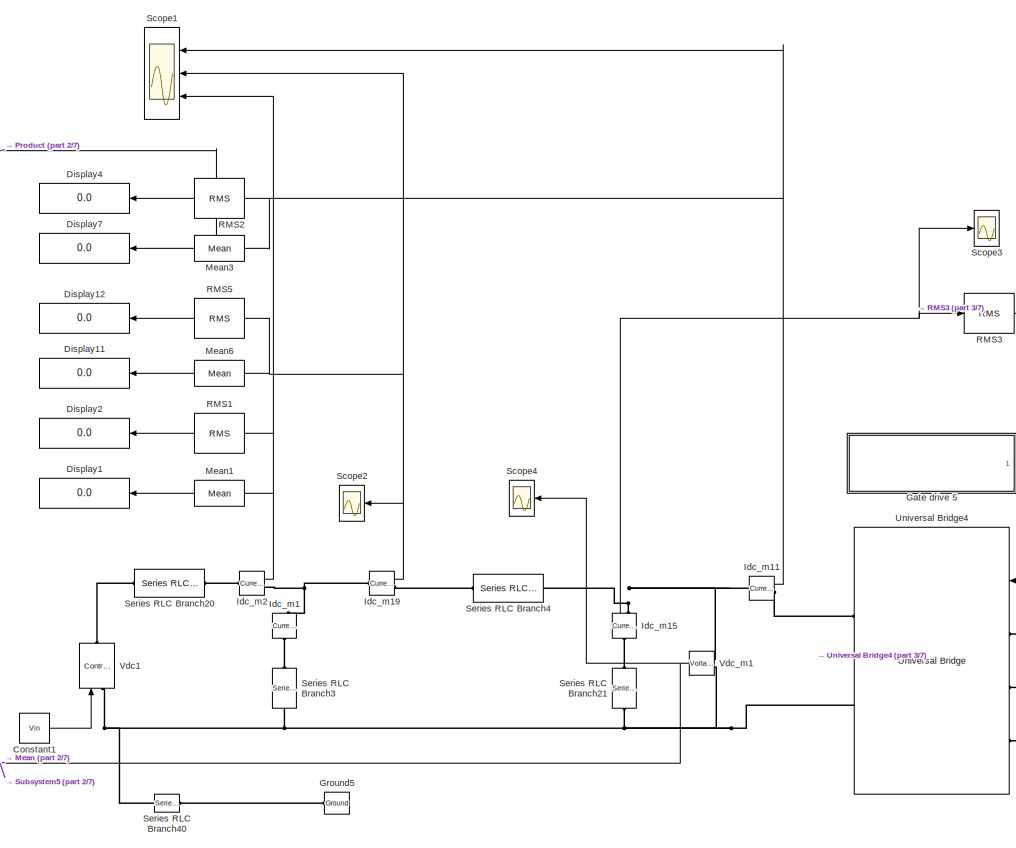
[diagram: root canvas - part 1/7, top center region]
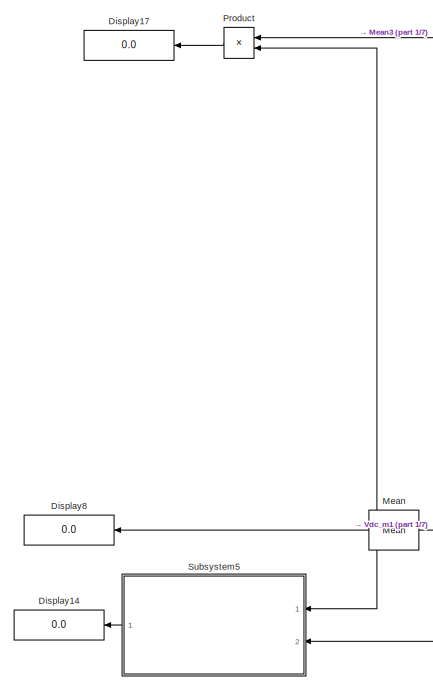
[diagram: root canvas - part 2/7, top left region]
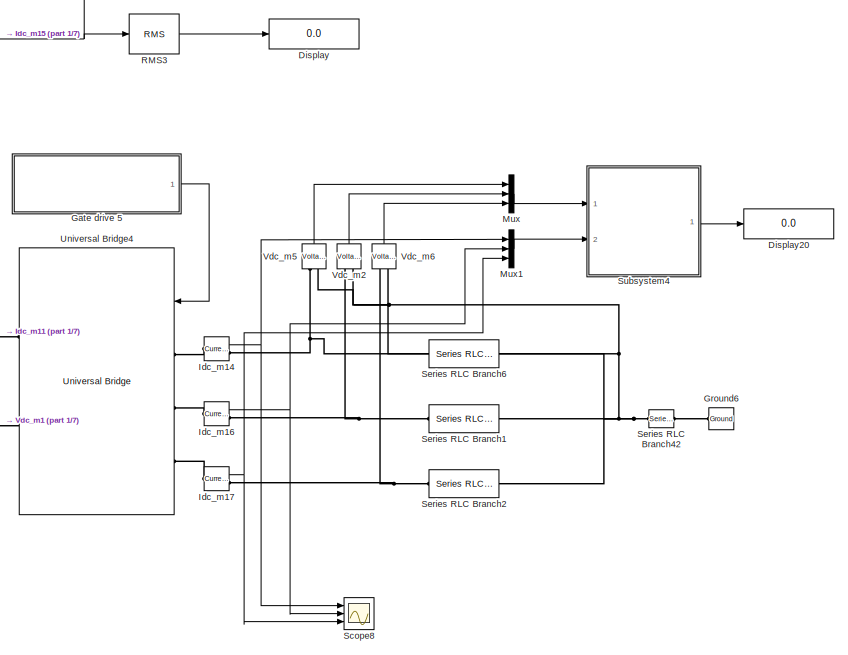
[diagram: root canvas - part 3/7, top right region]
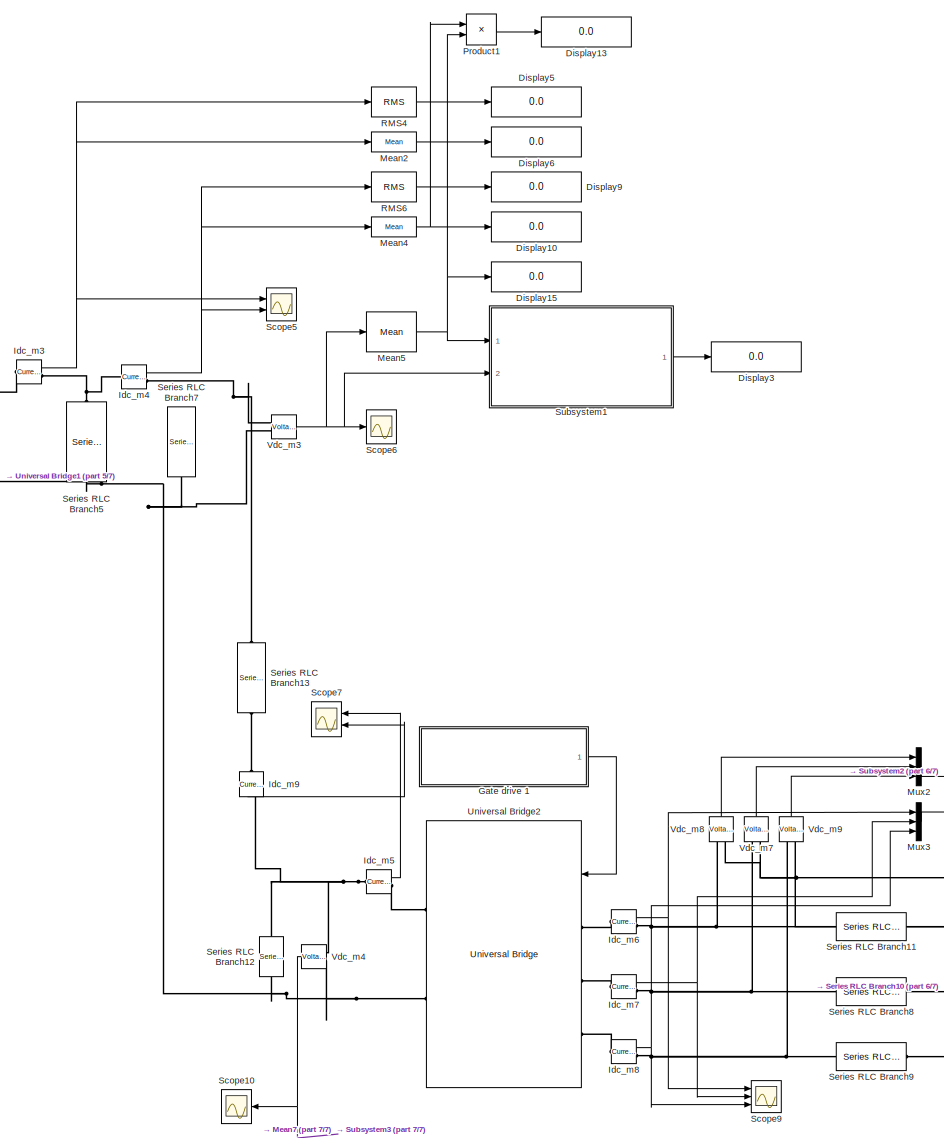
[diagram: root canvas - part 4/7, bottom center region]
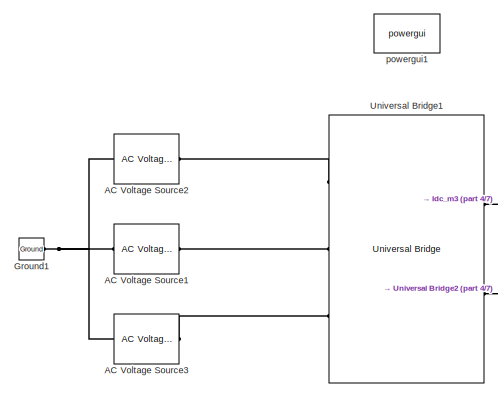
[diagram: root canvas - part 5/7, middle left region]
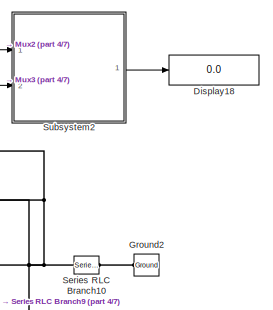
[diagram: root canvas - part 6/7, bottom right region]
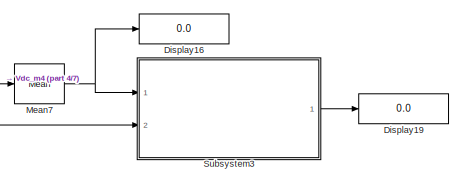
[diagram: root canvas - part 7/7, bottom center region]
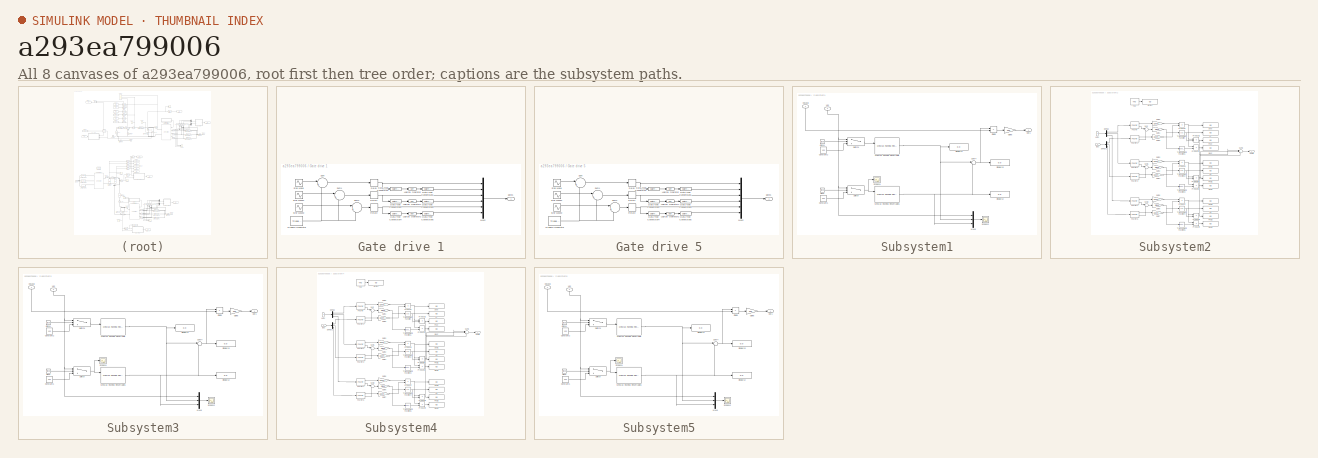
[diagram: thumbnail index - all 8 canvases of the model, root first then tree order]
MODEL slx_a293ea799006
KIND model
CONFIG AbsTol = auto
CONFIG FixedStep = Ts
CONFIG MaxStep = auto
CONFIG MinStep = auto
CONFIG RelTol = 1e-3
CONFIG SampleTimeConstraint = Unconstrained
CONFIG Solver = ode4
CONFIG SolverMode = Auto
CONFIG SolverName = ode4
CONFIG StartTime = 0.0
CONFIG StopTime = Tfinal
BLOCK [Reference] AC Voltage Source1  REF=powerlib/Electrical
Sources/AC Voltage Source
  Ports = [0, 0, 0, 0, 0, 1, 1]
  SourceBlock = powerlib/Electrical\nSources/AC Voltage Source
  SourceType = AC Voltage Source
BLOCK [Reference] AC Voltage Source2  REF=powerlib/Electrical
Sources/AC Voltage Source
  Ports = [0, 0, 0, 0, 0, 1, 1]
  SourceBlock = powerlib/Electrical\nSources/AC Voltage Source
  SourceType = AC Voltage Source
BLOCK [Reference] AC Voltage Source3  REF=powerlib/Electrical
Sources/AC Voltage Source
  Ports = [0, 0, 0, 0, 0, 1, 1]
  SourceBlock = powerlib/Electrical\nSources/AC Voltage Source
  SourceType = AC Voltage Source
BLOCK [Constant] Constant1
  Commented = on
  Value = Vin
BLOCK [Display] Display
  Commented = on
  Decimation = 1
  Ports = [1]
BLOCK [Display] Display1
  Commented = on
  Decimation = 1
  Ports = [1]
BLOCK [Display] Display10
  Decimation = 1
  Ports = [1]
BLOCK [Display] Display11
  Commented = on
  Decimation = 1
  Ports = [1]
BLOCK [Display] Display12
  Commented = on
  Decimation = 1
  Ports = [1]
BLOCK [Display] Display13
  Decimation = 1
  Ports = [1]
BLOCK [Display] Display14
  Commented = on
  Decimation = 1
  Ports = [1]
BLOCK [Display] Display15
  Decimation = 1
  Ports = [1]
BLOCK [Display] Display16
  Decimation = 1
  Ports = [1]
BLOCK [Display] Display17
  Commented = on
  Decimation = 1
  Ports = [1]
BLOCK [Display] Display18
  Decimation = 1
  Ports = [1]
BLOCK [Display] Display19
  Decimation = 1
  Ports = [1]
BLOCK [Display] Display2
  Commented = on
  Decimation = 1
  Ports = [1]
BLOCK [Display] Display20
  Commented = on
  Decimation = 1
  Ports = [1]
BLOCK [Display] Display3
  Decimation = 1
  Ports = [1]
BLOCK [Display] Display4
  Commented = on
  Decimation = 1
  Ports = [1]
BLOCK [Display] Display5
  Decimation = 1
  Ports = [1]
BLOCK [Display] Display6
  Decimation = 1
  Ports = [1]
BLOCK [Display] Display7
  Commented = on
  Decimation = 1
  Ports = [1]
BLOCK [Display] Display8
  Commented = on
  Decimation = 1
  Ports = [1]
BLOCK [Display] Display9
  Decimation = 1
  Ports = [1]
BLOCK [SubSystem] Gate drive 1
  Ports = [0, 1]
  RequestExecContextInheritance = off
  Variant = off
BLOCK [DataTypeConversion] Gate drive 1/Data Type Conversion
  OutDataTypeStr = boolean
  RndMeth = Floor
  SaturateOnIntegerOverflow = off
BLOCK [DataTypeConversion] Gate drive 1/Data Type Conversion1
  OutDataTypeStr = double
  RndMeth = Floor
  SaturateOnIntegerOverflow = off
BLOCK [DataTypeConversion] Gate drive 1/Data Type Conversion2
  OutDataTypeStr = boolean
  RndMeth = Floor
  SaturateOnIntegerOverflow = off
BLOCK [DataTypeConversion] Gate drive 1/Data Type Conversion3
  OutDataTypeStr = double
  RndMeth = Floor
  SaturateOnIntegerOverflow = off
BLOCK [DataTypeConversion] Gate drive 1/Data Type Conversion4
  OutDataTypeStr = boolean
  RndMeth = Floor
  SaturateOnIntegerOverflow = off
BLOCK [DataTypeConversion] Gate drive 1/Data Type Conversion5
  OutDataTypeStr = double
  RndMeth = Floor
  SaturateOnIntegerOverflow = off
BLOCK [Logic] Gate drive 1/Logical Operator
  AllPortsSameDT = off
  Operator = NOT
  OutDataTypeStr = boolean
  Ports = [1, 1]
BLOCK [Logic] Gate drive 1/Logical Operator1
  AllPortsSameDT = off
  Operator = NOT
  OutDataTypeStr = boolean
  Ports = [1, 1]
BLOCK [Logic] Gate drive 1/Logical Operator2
  AllPortsSameDT = off
  Operator = NOT
  OutDataTypeStr = boolean
  Ports = [1, 1]
BLOCK [Mux] Gate drive 1/Mux2
  DisplayOption = bar
  Inputs = 6
  Ports = [6, 1]
BLOCK [Relay] Gate drive 1/Relay
  InputProcessing = Elements as channels (sample based)
BLOCK [Relay] Gate drive 1/Relay1
  InputProcessing = Elements as channels (sample based)
BLOCK [Relay] Gate drive 1/Relay2
  InputProcessing = Elements as channels (sample based)
BLOCK [Sin] Gate drive 1/Sine Wave
  Amplitude = ma1
  Frequency = wout
  Phase = delta
  Ports = [0, 1]
  SampleTime = 0
BLOCK [Sin] Gate drive 1/Sine Wave1
  Amplitude = ma1
  Frequency = wout
  Phase = -2*pi/3+delta
  Ports = [0, 1]
  SampleTime = 0
BLOCK [Sin] Gate drive 1/Sine Wave2
  Amplitude = ma1
  Frequency = wout
  Phase = 2*pi/3+delta
  Ports = [0, 1]
  SampleTime = 0
BLOCK [Sum] Gate drive 1/Sum
  IconShape = round
  InputSameDT = off
  Inputs = |+-
  OutDataTypeStr = Inherit: Inherit via internal rule
  Ports = [2, 1]
  SaturateOnIntegerOverflow = off
BLOCK [Sum] Gate drive 1/Sum1
  IconShape = round
  InputSameDT = off
  Inputs = |+-
  OutDataTypeStr = Inherit: Inherit via internal rule
  Ports = [2, 1]
  SaturateOnIntegerOverflow = off
BLOCK [Sum] Gate drive 1/Sum2
  IconShape = round
  InputSameDT = off
  Inputs = |+-
  OutDataTypeStr = Inherit: Inherit via internal rule
  Ports = [2, 1]
  SaturateOnIntegerOverflow = off
BLOCK [Reference] Gate drive 1/Triangle Generator  REF=powerlib_meascontrol/Pulse & Signal
Generators/Triangle
Generator
  Ports = [0, 1]
  SourceBlock = powerlib_meascontrol/Pulse & Signal\nGenerators/Triangle\nGenerator
  SourceType = Triangle Generator
BLOCK [Outport] Gate drive 1/gate1
  IconDisplay = Port number
BLOCK [SubSystem] Gate drive 5
  Commented = on
  Ports = [0, 1]
  RequestExecContextInheritance = off
  Variant = off
BLOCK [DataTypeConversion] Gate drive 5/Data Type Conversion
  OutDataTypeStr = boolean
  RndMeth = Floor
  SaturateOnIntegerOverflow = off
BLOCK [DataTypeConversion] Gate drive 5/Data Type Conversion1
  OutDataTypeStr = double
  RndMeth = Floor
  SaturateOnIntegerOverflow = off
BLOCK [DataTypeConversion] Gate drive 5/Data Type Conversion2
  OutDataTypeStr = boolean
  RndMeth = Floor
  SaturateOnIntegerOverflow = off
BLOCK [DataTypeConversion] Gate drive 5/Data Type Conversion3
  OutDataTypeStr = double
  RndMeth = Floor
  SaturateOnIntegerOverflow = off
BLOCK [DataTypeConversion] Gate drive 5/Data Type Conversion4
  OutDataTypeStr = boolean
  RndMeth = Floor
  SaturateOnIntegerOverflow = off
BLOCK [DataTypeConversion] Gate drive 5/Data Type Conversion5
  OutDataTypeStr = double
  RndMeth = Floor
  SaturateOnIntegerOverflow = off
BLOCK [Logic] Gate drive 5/Logical Operator
  AllPortsSameDT = off
  Operator = NOT
  OutDataTypeStr = boolean
  Ports = [1, 1]
BLOCK [Logic] Gate drive 5/Logical Operator1
  AllPortsSameDT = off
  Operator = NOT
  OutDataTypeStr = boolean
  Ports = [1, 1]
BLOCK [Logic] Gate drive 5/Logical Operator2
  AllPortsSameDT = off
  Operator = NOT
  OutDataTypeStr = boolean
  Ports = [1, 1]
BLOCK [Mux] Gate drive 5/Mux2
  DisplayOption = bar
  Inputs = 6
  Ports = [6, 1]
BLOCK [Relay] Gate drive 5/Relay
  InputProcessing = Elements as channels (sample based)
BLOCK [Relay] Gate drive 5/Relay1
  InputProcessing = Elements as channels (sample based)
BLOCK [Relay] Gate drive 5/Relay2
  InputProcessing = Elements as channels (sample based)
BLOCK [Sin] Gate drive 5/Sine Wave
  Amplitude = ma1
  Frequency = wout
  Phase = delta
  Ports = [0, 1]
  SampleTime = 0
BLOCK [Sin] Gate drive 5/Sine Wave1
  Amplitude = ma1
  Frequency = wout
  Phase = -2*pi/3+delta
  Ports = [0, 1]
  SampleTime = 0
BLOCK [Sin] Gate drive 5/Sine Wave2
  Amplitude = ma1
  Frequency = wout
  Phase = 2*pi/3+delta
  Ports = [0, 1]
  SampleTime = 0
BLOCK [Sum] Gate drive 5/Sum
  IconShape = round
  InputSameDT = off
  Inputs = |+-
  OutDataTypeStr = Inherit: Inherit via internal rule
  Ports = [2, 1]
  SaturateOnIntegerOverflow = off
BLOCK [Sum] Gate drive 5/Sum1
  IconShape = round
  InputSameDT = off
  Inputs = |+-
  OutDataTypeStr = Inherit: Inherit via internal rule
  Ports = [2, 1]
  SaturateOnIntegerOverflow = off
BLOCK [Sum] Gate drive 5/Sum2
  IconShape = round
  InputSameDT = off
  Inputs = |+-
  OutDataTypeStr = Inherit: Inherit via internal rule
  Ports = [2, 1]
  SaturateOnIntegerOverflow = off
BLOCK [Reference] Gate drive 5/Triangle Generator  REF=powerlib_meascontrol/Pulse & Signal
Generators/Triangle
Generator
  Ports = [0, 1]
  SourceBlock = powerlib_meascontrol/Pulse & Signal\nGenerators/Triangle\nGenerator
  SourceType = Triangle Generator
BLOCK [Outport] Gate drive 5/gate1
  IconDisplay = Port number
BLOCK [Reference] Ground1  REF=powerlib/Elements/Ground
  Ports = [0, 0, 0, 0, 0, 1]
  SourceBlock = powerlib/Elements/Ground
  SourceType = Ground
BLOCK [Reference] Ground2  REF=powerlib/Elements/Ground
  Ports = [0, 0, 0, 0, 0, 1]
  SourceBlock = powerlib/Elements/Ground
  SourceType = Ground
BLOCK [Reference] Ground5  REF=powerlib/Elements/Ground
  Commented = on
  Ports = [0, 0, 0, 0, 0, 1]
  SourceBlock = powerlib/Elements/Ground
  SourceType = Ground
BLOCK [Reference] Ground6  REF=powerlib/Elements/Ground
  Commented = on
  Ports = [0, 0, 0, 0, 0, 1]
  SourceBlock = powerlib/Elements/Ground
  SourceType = Ground
BLOCK [Reference] Idc_m1  REF=powerlib/Measurements/Current Measurement
  Commented = on
  Ports = [0, 1, 0, 0, 0, 1, 1]
  SourceBlock = powerlib/Measurements/Current Measurement
  SourceType = Current Measurement
BLOCK [Reference] Idc_m11  REF=powerlib/Measurements/Current Measurement
  Commented = on
  Ports = [0, 1, 0, 0, 0, 1, 1]
  SourceBlock = powerlib/Measurements/Current Measurement
  SourceType = Current Measurement
BLOCK [Reference] Idc_m14  REF=powerlib/Measurements/Current Measurement
  Commented = on
  Ports = [0, 1, 0, 0, 0, 1, 1]
  SourceBlock = powerlib/Measurements/Current Measurement
  SourceType = Current Measurement
BLOCK [Reference] Idc_m15  REF=powerlib/Measurements/Current Measurement
  Commented = on
  Ports = [0, 1, 0, 0, 0, 1, 1]
  SourceBlock = powerlib/Measurements/Current Measurement
  SourceType = Current Measurement
BLOCK [Reference] Idc_m16  REF=powerlib/Measurements/Current Measurement
  Commented = on
  Ports = [0, 1, 0, 0, 0, 1, 1]
  SourceBlock = powerlib/Measurements/Current Measurement
  SourceType = Current Measurement
BLOCK [Reference] Idc_m17  REF=powerlib/Measurements/Current Measurement
  Commented = on
  Ports = [0, 1, 0, 0, 0, 1, 1]
  SourceBlock = powerlib/Measurements/Current Measurement
  SourceType = Current Measurement
BLOCK [Reference] Idc_m19  REF=powerlib/Measurements/Current Measurement
  Commented = on
  Ports = [0, 1, 0, 0, 0, 1, 1]
  SourceBlock = powerlib/Measurements/Current Measurement
  SourceType = Current Measurement
BLOCK [Reference] Idc_m2  REF=powerlib/Measurements/Current Measurement
  Commented = on
  Ports = [0, 1, 0, 0, 0, 1, 1]
  SourceBlock = powerlib/Measurements/Current Measurement
  SourceType = Current Measurement
BLOCK [Reference] Idc_m3  REF=powerlib/Measurements/Current Measurement
  Ports = [0, 1, 0, 0, 0, 1, 1]
  SourceBlock = powerlib/Measurements/Current Measurement
  SourceType = Current Measurement
BLOCK [Reference] Idc_m4  REF=powerlib/Measurements/Current Measurement
  Ports = [0, 1, 0, 0, 0, 1, 1]
  SourceBlock = powerlib/Measurements/Current Measurement
  SourceType = Current Measurement
BLOCK [Reference] Idc_m5  REF=powerlib/Measurements/Current Measurement
  Ports = [0, 1, 0, 0, 0, 1, 1]
  SourceBlock = powerlib/Measurements/Current Measurement
  SourceType = Current Measurement
BLOCK [Reference] Idc_m6  REF=powerlib/Measurements/Current Measurement
  Ports = [0, 1, 0, 0, 0, 1, 1]
  SourceBlock = powerlib/Measurements/Current Measurement
  SourceType = Current Measurement
BLOCK [Reference] Idc_m7  REF=powerlib/Measurements/Current Measurement
  Ports = [0, 1, 0, 0, 0, 1, 1]
  SourceBlock = powerlib/Measurements/Current Measurement
  SourceType = Current Measurement
BLOCK [Reference] Idc_m8  REF=powerlib/Measurements/Current Measurement
  Ports = [0, 1, 0, 0, 0, 1, 1]
  SourceBlock = powerlib/Measurements/Current Measurement
  SourceType = Current Measurement
BLOCK [Reference] Idc_m9  REF=powerlib/Measurements/Current Measurement
  Ports = [0, 1, 0, 0, 0, 1, 1]
  SourceBlock = powerlib/Measurements/Current Measurement
  SourceType = Current Measurement
BLOCK [Reference] Mean  REF=powerlib_meascontrol/Measurements/Mean
  Commented = on
  Ports = [1, 1]
  SourceBlock = powerlib_meascontrol/Measurements/Mean
  SourceType = Mean
BLOCK [Reference] Mean1  REF=powerlib_meascontrol/Measurements/Mean
  Commented = on
  Ports = [1, 1]
  SourceBlock = powerlib_meascontrol/Measurements/Mean
  SourceType = Mean
BLOCK [Reference] Mean2  REF=powerlib_meascontrol/Measurements/Mean
  Ports = [1, 1]
  SourceBlock = powerlib_meascontrol/Measurements/Mean
  SourceType = Mean
BLOCK [Reference] Mean3  REF=powerlib_meascontrol/Measurements/Mean
  Commented = on
  Ports = [1, 1]
  SourceBlock = powerlib_meascontrol/Measurements/Mean
  SourceType = Mean
BLOCK [Reference] Mean4  REF=powerlib_meascontrol/Measurements/Mean
  Ports = [1, 1]
  SourceBlock = powerlib_meascontrol/Measurements/Mean
  SourceType = Mean
BLOCK [Reference] Mean5  REF=powerlib_meascontrol/Measurements/Mean
  Ports = [1, 1]
  SourceBlock = powerlib_meascontrol/Measurements/Mean
  SourceType = Mean
BLOCK [Reference] Mean6  REF=powerlib_meascontrol/Measurements/Mean
  Commented = on
  Ports = [1, 1]
  SourceBlock = powerlib_meascontrol/Measurements/Mean
  SourceType = Mean
BLOCK [Reference] Mean7  REF=powerlib_meascontrol/Measurements/Mean
  Ports = [1, 1]
  SourceBlock = powerlib_meascontrol/Measurements/Mean
  SourceType = Mean
BLOCK [Mux] Mux
  Commented = on
  DisplayOption = bar
  Inputs = 3
  Ports = [3, 1]
BLOCK [Mux] Mux1
  Commented = on
  DisplayOption = bar
  Inputs = 3
  Ports = [3, 1]
BLOCK [Mux] Mux2
  DisplayOption = bar
  Inputs = 3
  Ports = [3, 1]
BLOCK [Mux] Mux3
  DisplayOption = bar
  Inputs = 3
  Ports = [3, 1]
BLOCK [Product] Product
  Commented = on
  InputSameDT = off
  OutDataTypeStr = Inherit: Inherit via internal rule
  Ports = [2, 1]
  RndMeth = Floor
  SaturateOnIntegerOverflow = off
BLOCK [Product] Product1
  InputSameDT = off
  OutDataTypeStr = Inherit: Inherit via internal rule
  Ports = [2, 1]
  RndMeth = Floor
  SaturateOnIntegerOverflow = off
BLOCK [Reference] RMS1  REF=powerlib_meascontrol/Measurements/RMS
  Commented = on
  Ports = [1, 1]
  SourceBlock = powerlib_meascontrol/Measurements/RMS
  SourceType = RMS
BLOCK [Reference] RMS2  REF=powerlib_meascontrol/Measurements/RMS
  Commented = on
  Ports = [1, 1]
  SourceBlock = powerlib_meascontrol/Measurements/RMS
  SourceType = RMS
BLOCK [Reference] RMS3  REF=powerlib_meascontrol/Measurements/RMS
  Commented = on
  Ports = [1, 1]
  SourceBlock = powerlib_meascontrol/Measurements/RMS
  SourceType = RMS
BLOCK [Reference] RMS4  REF=powerlib_meascontrol/Measurements/RMS
  Ports = [1, 1]
  SourceBlock = powerlib_meascontrol/Measurements/RMS
  SourceType = RMS
BLOCK [Reference] RMS5  REF=powerlib_meascontrol/Measurements/RMS
  Commented = on
  Ports = [1, 1]
  SourceBlock = powerlib_meascontrol/Measurements/RMS
  SourceType = RMS
BLOCK [Reference] RMS6  REF=powerlib_meascontrol/Measurements/RMS
  Ports = [1, 1]
  SourceBlock = powerlib_meascontrol/Measurements/RMS
  SourceType = RMS
BLOCK [Scope] Scope1
  Commented = on
  NumInputPorts = 3
  Ports = [3]
  ScopeSpecificationString = Simulink.scopes.TimeScopeBlockCfg('CurrentConfiguration', extmgr.ConfigurationSet(extmgr.Configuration('Core','General UI',true),extmgr.Configuration('Core','Source UI',true),extmgr.Configuration('Sources','WiredSimulink',true,'DataLoggingVariableName','ScopeData1'),extmgr.Configuration('Visuals','Time Domain',true,'SerializedDisplays',{struct('MinYLimReal','-0.71214','MaxYLimReal','13.03136','YLa...<+1433ch>
BLOCK [Scope] Scope10
  Ports = [1]
  ScopeSpecificationString = Simulink.scopes.TimeScopeBlockCfg('CurrentConfiguration', extmgr.ConfigurationSet(extmgr.Configuration('Core','General UI',true),extmgr.Configuration('Core','Source UI',true),extmgr.Configuration('Sources','WiredSimulink',true,'DataLoggingVariableName','ScopeData8'),extmgr.Configuration('Visuals','Time Domain',true,'SerializedDisplays',{struct('MinYLimReal','203.22744','MaxYLimReal','232.162','YLa...<+1390ch>
BLOCK [Scope] Scope2
  Commented = on
  Ports = [1]
  ScopeSpecificationString = Simulink.scopes.TimeScopeBlockCfg('CurrentConfiguration', extmgr.ConfigurationSet(extmgr.Configuration('Core','General UI',true),extmgr.Configuration('Core','Source UI',true),extmgr.Configuration('Sources','WiredSimulink',true,'DataLoggingVariableName','ScopeData2'),extmgr.Configuration('Visuals','Time Domain',true,'SerializedDisplays',{struct('MinYLimReal','-1.69177','MaxYLimReal','17.37455','YLa...<+1416ch>
BLOCK [Scope] Scope3
  Commented = on
  Ports = [1]
  ScopeSpecificationString = Simulink.scopes.TimeScopeBlockCfg('CurrentConfiguration', extmgr.ConfigurationSet(extmgr.Configuration('Core','General UI',true),extmgr.Configuration('Core','Source UI',true),extmgr.Configuration('Sources','WiredSimulink',true,'DataLoggingVariableName','ScopeData3'),extmgr.Configuration('Visuals','Time Domain',true,'SerializedDisplays',{struct('MinYLimReal','-12.33938','MaxYLimReal','7.39208','YLa...<+1415ch>
BLOCK [Scope] Scope4
  Commented = on
  Ports = [1]
  ScopeSpecificationString = Simulink.scopes.TimeScopeBlockCfg('CurrentConfiguration', extmgr.ConfigurationSet(extmgr.Configuration('Core','General UI',true),extmgr.Configuration('Core','Source UI',true),extmgr.Configuration('Sources','WiredSimulink',true,'DataLoggingVariableName','ScopeData3'),extmgr.Configuration('Visuals','Time Domain',true,'SerializedDisplays',{struct('MinYLimReal','-33.69265','MaxYLimReal','303.23403','Y...<+1420ch>
BLOCK [Scope] Scope5
  NumInputPorts = 2
  Ports = [2]
  ScopeSpecificationString = Simulink.scopes.TimeScopeBlockCfg('CurrentConfiguration', extmgr.ConfigurationSet(extmgr.Configuration('Core','General UI',true),extmgr.Configuration('Core','Source UI',true),extmgr.Configuration('Sources','WiredSimulink',true,'DataLoggingVariableName','ScopeData4'),extmgr.Configuration('Visuals','Time Domain',true,'SerializedDisplays',{struct('MinYLimReal','-4.98999','MaxYLimReal','16.8058','YLab...<+1418ch>
BLOCK [Scope] Scope6
  Ports = [1]
  ScopeSpecificationString = Simulink.scopes.TimeScopeBlockCfg('CurrentConfiguration', extmgr.ConfigurationSet(extmgr.Configuration('Core','General UI',true),extmgr.Configuration('Core','Source UI',true),extmgr.Configuration('Sources','WiredSimulink',true,'DataLoggingVariableName','ScopeData5'),extmgr.Configuration('Visuals','Time Domain',true,'SerializedDisplays',{struct('MinYLimReal','270.48141','MaxYLimReal','285.02928','Y...<+1398ch>
BLOCK [Scope] Scope7
  NumInputPorts = 2
  Ports = [2]
  ScopeSpecificationString = Simulink.scopes.TimeScopeBlockCfg('CurrentConfiguration', extmgr.ConfigurationSet(extmgr.Configuration('Core','General UI',true),extmgr.Configuration('Core','Source UI',true),extmgr.Configuration('Sources','WiredSimulink',true,'DataLoggingVariableName','ScopeData6'),extmgr.Configuration('Visuals','Time Domain',true,'SerializedDisplays',{struct('MinYLimReal','4.87604','MaxYLimReal','8.24253','YLabe...<+1443ch>
BLOCK [Scope] Scope8
  Commented = on
  NumInputPorts = 3
  Ports = [3]
  ScopeSpecificationString = Simulink.scopes.TimeScopeBlockCfg('CurrentConfiguration', extmgr.ConfigurationSet(extmgr.Configuration('Core','General UI',true),extmgr.Configuration('Core','Source UI',true),extmgr.Configuration('Sources','WiredSimulink',true,'DataLoggingVariableName','ScopeData4'),extmgr.Configuration('Visuals','Time Domain',true,'SerializedDisplays',{struct('MinYLimReal','-16.13021','MaxYLimReal','13.14721','YL...<+1411ch>
BLOCK [Scope] Scope9
  NumInputPorts = 3
  Ports = [3]
  ScopeSpecificationString = Simulink.scopes.TimeScopeBlockCfg('CurrentConfiguration', extmgr.ConfigurationSet(extmgr.Configuration('Core','General UI',true),extmgr.Configuration('Core','Source UI',true),extmgr.Configuration('Sources','WiredSimulink',true,'DataLoggingVariableName','ScopeData7'),extmgr.Configuration('Visuals','Time Domain',true,'SerializedDisplays',{struct('MinYLimReal','-16.13021','MaxYLimReal','13.14721','YL...<+1411ch>
BLOCK [Reference] Series RLC Branch1  REF=powerlib/Elements/Series RLC Branch
  Commented = on
  Ports = [0, 0, 0, 0, 0, 1, 1]
  SourceBlock = powerlib/Elements/Series RLC Branch
  SourceType = Series RLC Branch
BLOCK [Reference] Series RLC Branch10  REF=powerlib/Elements/Series RLC Branch
  Ports = [0, 0, 0, 0, 0, 1, 1]
  SourceBlock = powerlib/Elements/Series RLC Branch
  SourceType = Series RLC Branch
BLOCK [Reference] Series RLC Branch11  REF=powerlib/Elements/Series RLC Branch
  Ports = [0, 0, 0, 0, 0, 1, 1]
  SourceBlock = powerlib/Elements/Series RLC Branch
  SourceType = Series RLC Branch
BLOCK [Reference] Series RLC Branch12  REF=powerlib/Elements/Series RLC Branch
  Ports = [0, 0, 0, 0, 0, 1, 1]
  SourceBlock = powerlib/Elements/Series RLC Branch
  SourceType = Series RLC Branch
BLOCK [Reference] Series RLC Branch13  REF=powerlib/Elements/Series RLC Branch
  Ports = [0, 0, 0, 0, 0, 1, 1]
  SourceBlock = powerlib/Elements/Series RLC Branch
  SourceType = Series RLC Branch
BLOCK [Reference] Series RLC Branch2  REF=powerlib/Elements/Series RLC Branch
  Commented = on
  Ports = [0, 0, 0, 0, 0, 1, 1]
  SourceBlock = powerlib/Elements/Series RLC Branch
  SourceType = Series RLC Branch
BLOCK [Reference] Series RLC Branch20  REF=powerlib/Elements/Series RLC Branch
  Commented = on
  Ports = [0, 0, 0, 0, 0, 1, 1]
  SourceBlock = powerlib/Elements/Series RLC Branch
  SourceType = Series RLC Branch
BLOCK [Reference] Series RLC Branch21  REF=powerlib/Elements/Series RLC Branch
  Commented = on
  Ports = [0, 0, 0, 0, 0, 1, 1]
  SourceBlock = powerlib/Elements/Series RLC Branch
  SourceType = Series RLC Branch
BLOCK [Reference] Series RLC Branch3  REF=powerlib/Elements/Series RLC Branch
  Commented = on
  Ports = [0, 0, 0, 0, 0, 1, 1]
  SourceBlock = powerlib/Elements/Series RLC Branch
  SourceType = Series RLC Branch
BLOCK [Reference] Series RLC Branch4  REF=powerlib/Elements/Series RLC Branch
  Commented = on
  Ports = [0, 0, 0, 0, 0, 1, 1]
  SourceBlock = powerlib/Elements/Series RLC Branch
  SourceType = Series RLC Branch
BLOCK [Reference] Series RLC Branch40  REF=powerlib/Elements/Series RLC Branch
  Commented = on
  Ports = [0, 0, 0, 0, 0, 1, 1]
  SourceBlock = powerlib/Elements/Series RLC Branch
  SourceType = Series RLC Branch
BLOCK [Reference] Series RLC Branch42  REF=powerlib/Elements/Series RLC Branch
  Commented = on
  Ports = [0, 0, 0, 0, 0, 1, 1]
  SourceBlock = powerlib/Elements/Series RLC Branch
  SourceType = Series RLC Branch
BLOCK [Reference] Series RLC Branch5  REF=powerlib/Elements/Series RLC Branch
  Ports = [0, 0, 0, 0, 0, 1, 1]
  SourceBlock = powerlib/Elements/Series RLC Branch
  SourceType = Series RLC Branch
BLOCK [Reference] Series RLC Branch6  REF=powerlib/Elements/Series RLC Branch
  Commented = on
  Ports = [0, 0, 0, 0, 0, 1, 1]
  SourceBlock = powerlib/Elements/Series RLC Branch
  SourceType = Series RLC Branch
BLOCK [Reference] Series RLC Branch7  REF=powerlib/Elements/Series RLC Branch
  Ports = [0, 0, 0, 0, 0, 1, 1]
  SourceBlock = powerlib/Elements/Series RLC Branch
  SourceType = Series RLC Branch
BLOCK [Reference] Series RLC Branch8  REF=powerlib/Elements/Series RLC Branch
  Ports = [0, 0, 0, 0, 0, 1, 1]
  SourceBlock = powerlib/Elements/Series RLC Branch
  SourceType = Series RLC Branch
BLOCK [Reference] Series RLC Branch9  REF=powerlib/Elements/Series RLC Branch
  Ports = [0, 0, 0, 0, 0, 1, 1]
  SourceBlock = powerlib/Elements/Series RLC Branch
  SourceType = Series RLC Branch
BLOCK [SubSystem] Subsystem1
  Ports = [2, 1]
  RequestExecContextInheritance = off
  Variant = off
BLOCK [Clock] Subsystem1/Clock
BLOCK [Clock] Subsystem1/Clock1
BLOCK [Constant] Subsystem1/Constant1
  SampleTime = Ts
  Value = 350
BLOCK [Constant] Subsystem1/Constant2
  SampleTime = Ts
  Value = 150
BLOCK [Display] Subsystem1/Display11
  Decimation = 1
  Ports = [1]
BLOCK [Display] Subsystem1/Display12
  Decimation = 1
  Ports = [1]
BLOCK [Display] Subsystem1/Display13
  Decimation = 1
  Ports = [1]
BLOCK [Product] Subsystem1/Divide
  InputSameDT = off
  Inputs = */
  OutDataTypeStr = Inherit: Inherit via internal rule
  Ports = [2, 1]
  RndMeth = Floor
  SaturateOnIntegerOverflow = off
BLOCK [Gain] Subsystem1/Gain6
  Gain = 100
  OutDataTypeStr = Inherit: Inherit via internal rule
  ParamDataTypeStr = Inherit: Inherit via internal rule
  SaturateOnIntegerOverflow = off
BLOCK [Reference] Subsystem1/MinMax Running Resettable  REF=simulink/Math
Operations/MinMax
Running
Resettable
  Ports = [2, 1]
  SourceBlock = simulink/Math\nOperations/MinMax\nRunning\nResettable
  SourceType = MinMax Running Resettable
BLOCK [Reference] Subsystem1/MinMax Running Resettable1  REF=simulink/Math
Operations/MinMax
Running
Resettable
  Ports = [2, 1]
  SourceBlock = simulink/Math\nOperations/MinMax\nRunning\nResettable
  SourceType = MinMax Running Resettable
BLOCK [Mux] Subsystem1/Mux6
  DisplayOption = bar
  Inputs = 3
  Ports = [3, 1]
BLOCK [Outport] Subsystem1/Out1
  IconDisplay = Port number
BLOCK [Scope] Subsystem1/Scope12
  Ports = [1]
  ScopeSpecificationString = Simulink.scopes.TimeScopeBlockCfg('CurrentConfiguration', extmgr.ConfigurationSet(extmgr.Configuration('Core','General UI',true),extmgr.Configuration('Core','Source UI',true),extmgr.Configuration('Sources','WiredSimulink',true,'DataLoggingVariableName','ScopeData11','DataLoggingSaveFormat','StructureWithTime','DataLoggingDecimation','1','DataLoggingDecimateData',true),extmgr.Configuration('Visuals...<+1756ch>  <repeated x3 — deduplicated; at blocks: Scope12>
BLOCK [Scope] Subsystem1/Scope14
  Ports = [1]
  ScopeSpecificationString = C++SS(StrPVP('Location','[1, 48, 1847, 1079]'),StrPVP('Open','off'),StrPVP('ZoomMode','yonly'),MxPVP('AxesTitles',24,'struct(''axes1'',''%<SignalLabel>'')'),MxPVP('ScopeGraphics',28,'struct(''FigureColor'',''[0.5 0.5 0.5]'',''AxesColor'',''[0 0 0]'',''AxesTickColor'',''[1 1 1]'',''LineColors'',''[1 1 0;1 0 1;0 1 1;1 0 0;0 1 0;0 0 1]'',''LineStyles'',''-|-|-|-|-|-'',''LineWidths'',''[0.5 0.5 0.5 0....<+341ch>  <repeated x3 — deduplicated; at blocks: Scope14>
BLOCK [Sum] Subsystem1/Sum4
  IconShape = round
  InputSameDT = off
  Inputs = |+-
  OutDataTypeStr = Inherit: Inherit via internal rule
  Ports = [2, 1]
  SaturateOnIntegerOverflow = off
BLOCK [Switch] Subsystem1/Switch
  InputSameDT = off
  SaturateOnIntegerOverflow = off
  Threshold = Ripth
BLOCK [Switch] Subsystem1/Switch1
  InputSameDT = off
  SaturateOnIntegerOverflow = off
  Threshold = Ripth
BLOCK [Inport] Subsystem1/Vdcavg
  IconDisplay = Port number
BLOCK [Inport] Subsystem1/vdc
  IconDisplay = Port number
  Port = 2
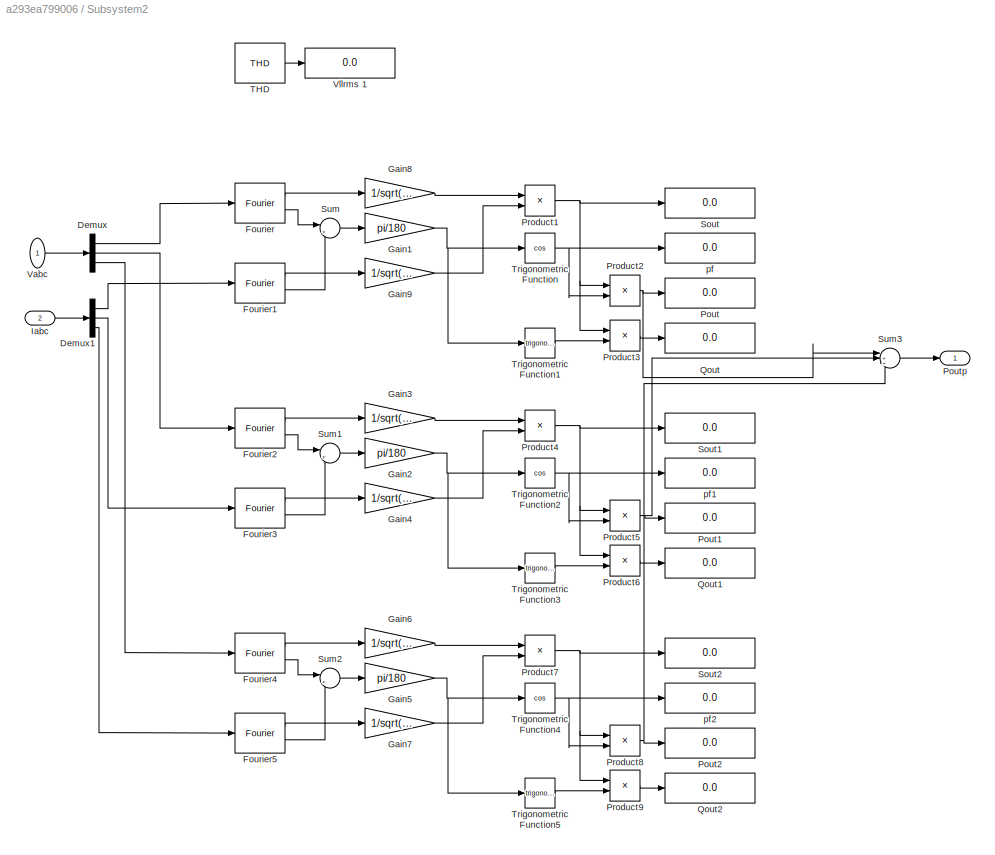
BLOCK [SubSystem] Subsystem2
  Ports = [2, 1]
  RequestExecContextInheritance = off
  Variant = off
BLOCK [Demux] Subsystem2/Demux
  DisplayOption = bar
  Outputs = 3
  Ports = [1, 3]
BLOCK [Demux] Subsystem2/Demux1
  DisplayOption = bar
  Outputs = 3
  Ports = [1, 3]
BLOCK [Reference] Subsystem2/Fourier  REF=powerlib_meascontrol/Measurements/Fourier
  Ports = [1, 2]
  SourceBlock = powerlib_meascontrol/Measurements/Fourier
  SourceType = Fourier
BLOCK [Reference] Subsystem2/Fourier1  REF=powerlib_meascontrol/Measurements/Fourier
  Ports = [1, 2]
  SourceBlock = powerlib_meascontrol/Measurements/Fourier
  SourceType = Fourier
BLOCK [Reference] Subsystem2/Fourier2  REF=powerlib_meascontrol/Measurements/Fourier
  Ports = [1, 2]
  SourceBlock = powerlib_meascontrol/Measurements/Fourier
  SourceType = Fourier
BLOCK [Reference] Subsystem2/Fourier3  REF=powerlib_meascontrol/Measurements/Fourier
  Ports = [1, 2]
  SourceBlock = powerlib_meascontrol/Measurements/Fourier
  SourceType = Fourier
BLOCK [Reference] Subsystem2/Fourier4  REF=powerlib_meascontrol/Measurements/Fourier
  Ports = [1, 2]
  SourceBlock = powerlib_meascontrol/Measurements/Fourier
  SourceType = Fourier
BLOCK [Reference] Subsystem2/Fourier5  REF=powerlib_meascontrol/Measurements/Fourier
  Ports = [1, 2]
  SourceBlock = powerlib_meascontrol/Measurements/Fourier
  SourceType = Fourier
BLOCK [Gain] Subsystem2/Gain1
  Gain = pi/180
  OutDataTypeStr = Inherit: Inherit via internal rule
  ParamDataTypeStr = Inherit: Inherit via internal rule
  SaturateOnIntegerOverflow = off
BLOCK [Gain] Subsystem2/Gain2
  Gain = pi/180
  OutDataTypeStr = Inherit: Inherit via internal rule
  ParamDataTypeStr = Inherit: Inherit via internal rule
  SaturateOnIntegerOverflow = off
BLOCK [Gain] Subsystem2/Gain3
  Gain = 1/sqrt(2)
  OutDataTypeStr = Inherit: Inherit via internal rule
  ParamDataTypeStr = Inherit: Inherit via internal rule
  SaturateOnIntegerOverflow = off
BLOCK [Gain] Subsystem2/Gain4
  Gain = 1/sqrt(2)
  OutDataTypeStr = Inherit: Inherit via internal rule
  ParamDataTypeStr = Inherit: Inherit via internal rule
  SaturateOnIntegerOverflow = off
BLOCK [Gain] Subsystem2/Gain5
  Gain = pi/180
  OutDataTypeStr = Inherit: Inherit via internal rule
  ParamDataTypeStr = Inherit: Inherit via internal rule
  SaturateOnIntegerOverflow = off
BLOCK [Gain] Subsystem2/Gain6
  Gain = 1/sqrt(2)
  OutDataTypeStr = Inherit: Inherit via internal rule
  ParamDataTypeStr = Inherit: Inherit via internal rule
  SaturateOnIntegerOverflow = off
BLOCK [Gain] Subsystem2/Gain7
  Gain = 1/sqrt(2)
  OutDataTypeStr = Inherit: Inherit via internal rule
  ParamDataTypeStr = Inherit: Inherit via internal rule
  SaturateOnIntegerOverflow = off
BLOCK [Gain] Subsystem2/Gain8
  Gain = 1/sqrt(2)
  OutDataTypeStr = Inherit: Inherit via internal rule
  ParamDataTypeStr = Inherit: Inherit via internal rule
  SaturateOnIntegerOverflow = off
BLOCK [Gain] Subsystem2/Gain9
  Gain = 1/sqrt(2)
  OutDataTypeStr = Inherit: Inherit via internal rule
  ParamDataTypeStr = Inherit: Inherit via internal rule
  SaturateOnIntegerOverflow = off
BLOCK [Inport] Subsystem2/Iabc
  IconDisplay = Port number
  Port = 2
BLOCK [Display] Subsystem2/Pout
  Decimation = 1
  Ports = [1]
BLOCK [Display] Subsystem2/Pout1
  Decimation = 1
  Ports = [1]
BLOCK [Display] Subsystem2/Pout2
  Decimation = 1
  Ports = [1]
BLOCK [Outport] Subsystem2/Poutp
  IconDisplay = Port number
BLOCK [Product] Subsystem2/Product1
  InputSameDT = off
  OutDataTypeStr = Inherit: Inherit via internal rule
  Ports = [2, 1]
  RndMeth = Floor
  SaturateOnIntegerOverflow = off
BLOCK [Product] Subsystem2/Product2
  InputSameDT = off
  OutDataTypeStr = Inherit: Inherit via internal rule
  Ports = [2, 1]
  RndMeth = Floor
  SaturateOnIntegerOverflow = off
BLOCK [Product] Subsystem2/Product3
  InputSameDT = off
  OutDataTypeStr = Inherit: Inherit via internal rule
  Ports = [2, 1]
  RndMeth = Floor
  SaturateOnIntegerOverflow = off
BLOCK [Product] Subsystem2/Product4
  InputSameDT = off
  OutDataTypeStr = Inherit: Inherit via internal rule
  Ports = [2, 1]
  RndMeth = Floor
  SaturateOnIntegerOverflow = off
BLOCK [Product] Subsystem2/Product5
  InputSameDT = off
  OutDataTypeStr = Inherit: Inherit via internal rule
  Ports = [2, 1]
  RndMeth = Floor
  SaturateOnIntegerOverflow = off
BLOCK [Product] Subsystem2/Product6
  InputSameDT = off
  OutDataTypeStr = Inherit: Inherit via internal rule
  Ports = [2, 1]
  RndMeth = Floor
  SaturateOnIntegerOverflow = off
BLOCK [Product] Subsystem2/Product7
  InputSameDT = off
  OutDataTypeStr = Inherit: Inherit via internal rule
  Ports = [2, 1]
  RndMeth = Floor
  SaturateOnIntegerOverflow = off
BLOCK [Product] Subsystem2/Product8
  InputSameDT = off
  OutDataTypeStr = Inherit: Inherit via internal rule
  Ports = [2, 1]
  RndMeth = Floor
  SaturateOnIntegerOverflow = off
BLOCK [Product] Subsystem2/Product9
  InputSameDT = off
  OutDataTypeStr = Inherit: Inherit via internal rule
  Ports = [2, 1]
  RndMeth = Floor
  SaturateOnIntegerOverflow = off
BLOCK [Display] Subsystem2/Qout
  Decimation = 1
  Ports = [1]
BLOCK [Display] Subsystem2/Qout1
  Decimation = 1
  Ports = [1]
BLOCK [Display] Subsystem2/Qout2
  Decimation = 1
  Ports = [1]
BLOCK [Display] Subsystem2/Sout
  Decimation = 1
  Format = short_e
  Ports = [1]
BLOCK [Display] Subsystem2/Sout1
  Decimation = 1
  Format = short_e
  Ports = [1]
BLOCK [Display] Subsystem2/Sout2
  Decimation = 1
  Format = short_e
  Ports = [1]
BLOCK [Sum] Subsystem2/Sum
  IconShape = round
  InputSameDT = off
  Inputs = |+-
  OutDataTypeStr = Inherit: Inherit via internal rule
  Ports = [2, 1]
  SaturateOnIntegerOverflow = off
BLOCK [Sum] Subsystem2/Sum1
  IconShape = round
  InputSameDT = off
  Inputs = |+-
  OutDataTypeStr = Inherit: Inherit via internal rule
  Ports = [2, 1]
  SaturateOnIntegerOverflow = off
BLOCK [Sum] Subsystem2/Sum2
  IconShape = round
  InputSameDT = off
  Inputs = |+-
  OutDataTypeStr = Inherit: Inherit via internal rule
  Ports = [2, 1]
  SaturateOnIntegerOverflow = off
BLOCK [Sum] Subsystem2/Sum3
  IconShape = round
  InputSameDT = off
  Inputs = |+++
  OutDataTypeStr = Inherit: Inherit via internal rule
  Ports = [3, 1]
  SaturateOnIntegerOverflow = off
BLOCK [Reference] Subsystem2/THD  REF=powerlib_meascontrol/Measurements/THD
  Ports = [1, 1]
  SourceBlock = powerlib_meascontrol/Measurements/THD
  SourceType = THD
BLOCK [Trigonometry] Subsystem2/Trigonometric Function
  Operator = cos
  Ports = [1, 1]
BLOCK [Trigonometry] Subsystem2/Trigonometric Function1
  Ports = [1, 1]
BLOCK [Trigonometry] Subsystem2/Trigonometric Function2
  Operator = cos
  Ports = [1, 1]
BLOCK [Trigonometry] Subsystem2/Trigonometric Function3
  Ports = [1, 1]
BLOCK [Trigonometry] Subsystem2/Trigonometric Function4
  Operator = cos
  Ports = [1, 1]
BLOCK [Trigonometry] Subsystem2/Trigonometric Function5
  Ports = [1, 1]
BLOCK [Inport] Subsystem2/Vabc
  IconDisplay = Port number
BLOCK [Display] Subsystem2/Vllrms 1
  Decimation = 1
  Ports = [1]
BLOCK [Display] Subsystem2/pf
  Decimation = 1
  Ports = [1]
BLOCK [Display] Subsystem2/pf1
  Decimation = 1
  Ports = [1]
BLOCK [Display] Subsystem2/pf2
  Decimation = 1
  Ports = [1]
BLOCK [SubSystem] Subsystem3
  Ports = [2, 1]
  RequestExecContextInheritance = off
  Variant = off
BLOCK [Clock] Subsystem3/Clock
BLOCK [Clock] Subsystem3/Clock1
BLOCK [Constant] Subsystem3/Constant1
  SampleTime = Ts
  Value = 350
BLOCK [Constant] Subsystem3/Constant2
  SampleTime = Ts
  Value = 150
BLOCK [Display] Subsystem3/Display11
  Decimation = 1
  Ports = [1]
BLOCK [Display] Subsystem3/Display12
  Decimation = 1
  Ports = [1]
BLOCK [Display] Subsystem3/Display13
  Decimation = 1
  Ports = [1]
BLOCK [Product] Subsystem3/Divide
  InputSameDT = off
  Inputs = */
  OutDataTypeStr = Inherit: Inherit via internal rule
  Ports = [2, 1]
  RndMeth = Floor
  SaturateOnIntegerOverflow = off
BLOCK [Gain] Subsystem3/Gain6
  Gain = 100
  OutDataTypeStr = Inherit: Inherit via internal rule
  ParamDataTypeStr = Inherit: Inherit via internal rule
  SaturateOnIntegerOverflow = off
BLOCK [Reference] Subsystem3/MinMax Running Resettable  REF=simulink/Math
Operations/MinMax
Running
Resettable
  Ports = [2, 1]
  SourceBlock = simulink/Math\nOperations/MinMax\nRunning\nResettable
  SourceType = MinMax Running Resettable
BLOCK [Reference] Subsystem3/MinMax Running Resettable1  REF=simulink/Math
Operations/MinMax
Running
Resettable
  Ports = [2, 1]
  SourceBlock = simulink/Math\nOperations/MinMax\nRunning\nResettable
  SourceType = MinMax Running Resettable
BLOCK [Mux] Subsystem3/Mux6
  DisplayOption = bar
  Inputs = 3
  Ports = [3, 1]
BLOCK [Outport] Subsystem3/Out1
  IconDisplay = Port number
BLOCK [Scope] Subsystem3/Scope12
  Ports = [1]
BLOCK [Scope] Subsystem3/Scope14
  Ports = [1]
BLOCK [Sum] Subsystem3/Sum4
  IconShape = round
  InputSameDT = off
  Inputs = |+-
  OutDataTypeStr = Inherit: Inherit via internal rule
  Ports = [2, 1]
  SaturateOnIntegerOverflow = off
BLOCK [Switch] Subsystem3/Switch
  InputSameDT = off
  SaturateOnIntegerOverflow = off
  Threshold = Ripth
BLOCK [Switch] Subsystem3/Switch1
  InputSameDT = off
  SaturateOnIntegerOverflow = off
  Threshold = Ripth
BLOCK [Inport] Subsystem3/Vdcavg
  IconDisplay = Port number
BLOCK [Inport] Subsystem3/vdc
  IconDisplay = Port number
  Port = 2
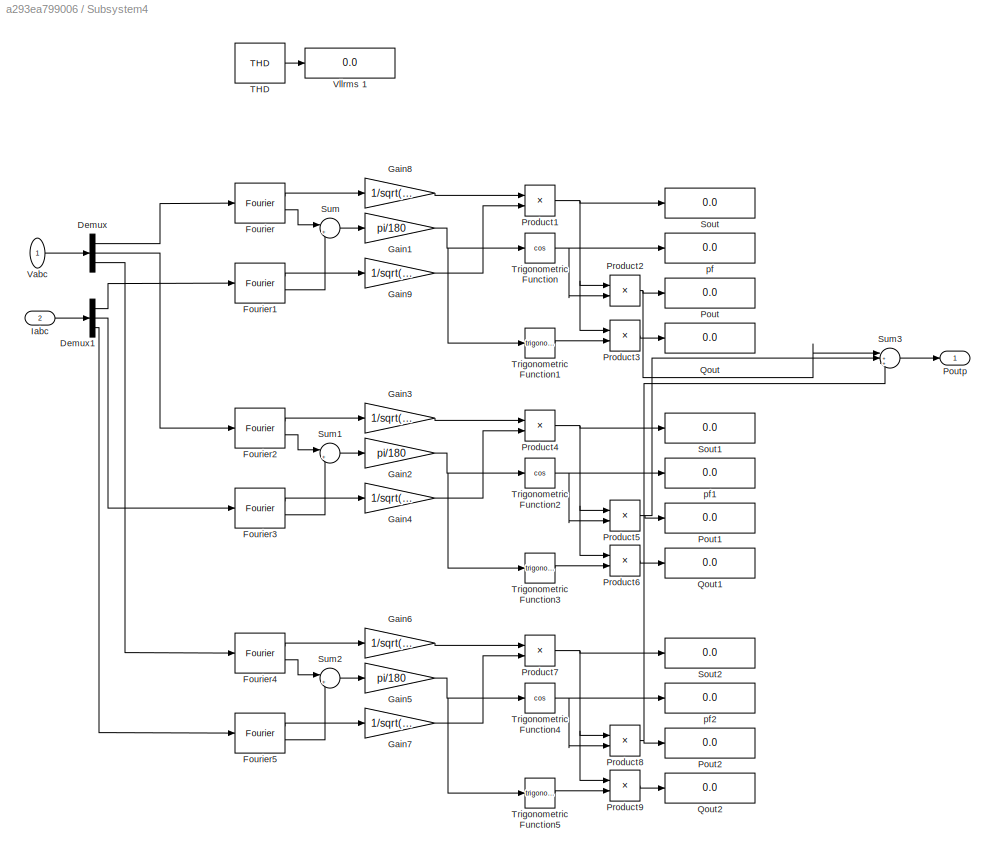
BLOCK [SubSystem] Subsystem4
  Commented = on
  Ports = [2, 1]
  RequestExecContextInheritance = off
  Variant = off
BLOCK [Demux] Subsystem4/Demux
  DisplayOption = bar
  Outputs = 3
  Ports = [1, 3]
BLOCK [Demux] Subsystem4/Demux1
  DisplayOption = bar
  Outputs = 3
  Ports = [1, 3]
BLOCK [Reference] Subsystem4/Fourier  REF=powerlib_meascontrol/Measurements/Fourier
  Ports = [1, 2]
  SourceBlock = powerlib_meascontrol/Measurements/Fourier
  SourceType = Fourier
BLOCK [Reference] Subsystem4/Fourier1  REF=powerlib_meascontrol/Measurements/Fourier
  Ports = [1, 2]
  SourceBlock = powerlib_meascontrol/Measurements/Fourier
  SourceType = Fourier
BLOCK [Reference] Subsystem4/Fourier2  REF=powerlib_meascontrol/Measurements/Fourier
  Ports = [1, 2]
  SourceBlock = powerlib_meascontrol/Measurements/Fourier
  SourceType = Fourier
BLOCK [Reference] Subsystem4/Fourier3  REF=powerlib_meascontrol/Measurements/Fourier
  Ports = [1, 2]
  SourceBlock = powerlib_meascontrol/Measurements/Fourier
  SourceType = Fourier
BLOCK [Reference] Subsystem4/Fourier4  REF=powerlib_meascontrol/Measurements/Fourier
  Ports = [1, 2]
  SourceBlock = powerlib_meascontrol/Measurements/Fourier
  SourceType = Fourier
BLOCK [Reference] Subsystem4/Fourier5  REF=powerlib_meascontrol/Measurements/Fourier
  Ports = [1, 2]
  SourceBlock = powerlib_meascontrol/Measurements/Fourier
  SourceType = Fourier
BLOCK [Gain] Subsystem4/Gain1
  Gain = pi/180
  OutDataTypeStr = Inherit: Inherit via internal rule
  ParamDataTypeStr = Inherit: Inherit via internal rule
  SaturateOnIntegerOverflow = off
BLOCK [Gain] Subsystem4/Gain2
  Gain = pi/180
  OutDataTypeStr = Inherit: Inherit via internal rule
  ParamDataTypeStr = Inherit: Inherit via internal rule
  SaturateOnIntegerOverflow = off
BLOCK [Gain] Subsystem4/Gain3
  Gain = 1/sqrt(2)
  OutDataTypeStr = Inherit: Inherit via internal rule
  ParamDataTypeStr = Inherit: Inherit via internal rule
  SaturateOnIntegerOverflow = off
BLOCK [Gain] Subsystem4/Gain4
  Gain = 1/sqrt(2)
  OutDataTypeStr = Inherit: Inherit via internal rule
  ParamDataTypeStr = Inherit: Inherit via internal rule
  SaturateOnIntegerOverflow = off
BLOCK [Gain] Subsystem4/Gain5
  Gain = pi/180
  OutDataTypeStr = Inherit: Inherit via internal rule
  ParamDataTypeStr = Inherit: Inherit via internal rule
  SaturateOnIntegerOverflow = off
BLOCK [Gain] Subsystem4/Gain6
  Gain = 1/sqrt(2)
  OutDataTypeStr = Inherit: Inherit via internal rule
  ParamDataTypeStr = Inherit: Inherit via internal rule
  SaturateOnIntegerOverflow = off
BLOCK [Gain] Subsystem4/Gain7
  Gain = 1/sqrt(2)
  OutDataTypeStr = Inherit: Inherit via internal rule
  ParamDataTypeStr = Inherit: Inherit via internal rule
  SaturateOnIntegerOverflow = off
BLOCK [Gain] Subsystem4/Gain8
  Gain = 1/sqrt(2)
  OutDataTypeStr = Inherit: Inherit via internal rule
  ParamDataTypeStr = Inherit: Inherit via internal rule
  SaturateOnIntegerOverflow = off
BLOCK [Gain] Subsystem4/Gain9
  Gain = 1/sqrt(2)
  OutDataTypeStr = Inherit: Inherit via internal rule
  ParamDataTypeStr = Inherit: Inherit via internal rule
  SaturateOnIntegerOverflow = off
BLOCK [Inport] Subsystem4/Iabc
  IconDisplay = Port number
  Port = 2
BLOCK [Display] Subsystem4/Pout
  Decimation = 1
  Ports = [1]
BLOCK [Display] Subsystem4/Pout1
  Decimation = 1
  Ports = [1]
BLOCK [Display] Subsystem4/Pout2
  Decimation = 1
  Ports = [1]
BLOCK [Outport] Subsystem4/Poutp
  IconDisplay = Port number
BLOCK [Product] Subsystem4/Product1
  InputSameDT = off
  OutDataTypeStr = Inherit: Inherit via internal rule
  Ports = [2, 1]
  RndMeth = Floor
  SaturateOnIntegerOverflow = off
BLOCK [Product] Subsystem4/Product2
  InputSameDT = off
  OutDataTypeStr = Inherit: Inherit via internal rule
  Ports = [2, 1]
  RndMeth = Floor
  SaturateOnIntegerOverflow = off
BLOCK [Product] Subsystem4/Product3
  InputSameDT = off
  OutDataTypeStr = Inherit: Inherit via internal rule
  Ports = [2, 1]
  RndMeth = Floor
  SaturateOnIntegerOverflow = off
BLOCK [Product] Subsystem4/Product4
  InputSameDT = off
  OutDataTypeStr = Inherit: Inherit via internal rule
  Ports = [2, 1]
  RndMeth = Floor
  SaturateOnIntegerOverflow = off
BLOCK [Product] Subsystem4/Product5
  InputSameDT = off
  OutDataTypeStr = Inherit: Inherit via internal rule
  Ports = [2, 1]
  RndMeth = Floor
  SaturateOnIntegerOverflow = off
BLOCK [Product] Subsystem4/Product6
  InputSameDT = off
  OutDataTypeStr = Inherit: Inherit via internal rule
  Ports = [2, 1]
  RndMeth = Floor
  SaturateOnIntegerOverflow = off
BLOCK [Product] Subsystem4/Product7
  InputSameDT = off
  OutDataTypeStr = Inherit: Inherit via internal rule
  Ports = [2, 1]
  RndMeth = Floor
  SaturateOnIntegerOverflow = off
BLOCK [Product] Subsystem4/Product8
  InputSameDT = off
  OutDataTypeStr = Inherit: Inherit via internal rule
  Ports = [2, 1]
  RndMeth = Floor
  SaturateOnIntegerOverflow = off
BLOCK [Product] Subsystem4/Product9
  InputSameDT = off
  OutDataTypeStr = Inherit: Inherit via internal rule
  Ports = [2, 1]
  RndMeth = Floor
  SaturateOnIntegerOverflow = off
BLOCK [Display] Subsystem4/Qout
  Decimation = 1
  Ports = [1]
BLOCK [Display] Subsystem4/Qout1
  Decimation = 1
  Ports = [1]
BLOCK [Display] Subsystem4/Qout2
  Decimation = 1
  Ports = [1]
BLOCK [Display] Subsystem4/Sout
  Decimation = 1
  Format = short_e
  Ports = [1]
BLOCK [Display] Subsystem4/Sout1
  Decimation = 1
  Format = short_e
  Ports = [1]
BLOCK [Display] Subsystem4/Sout2
  Decimation = 1
  Format = short_e
  Ports = [1]
BLOCK [Sum] Subsystem4/Sum
  IconShape = round
  InputSameDT = off
  Inputs = |+-
  OutDataTypeStr = Inherit: Inherit via internal rule
  Ports = [2, 1]
  SaturateOnIntegerOverflow = off
BLOCK [Sum] Subsystem4/Sum1
  IconShape = round
  InputSameDT = off
  Inputs = |+-
  OutDataTypeStr = Inherit: Inherit via internal rule
  Ports = [2, 1]
  SaturateOnIntegerOverflow = off
BLOCK [Sum] Subsystem4/Sum2
  IconShape = round
  InputSameDT = off
  Inputs = |+-
  OutDataTypeStr = Inherit: Inherit via internal rule
  Ports = [2, 1]
  SaturateOnIntegerOverflow = off
BLOCK [Sum] Subsystem4/Sum3
  IconShape = round
  InputSameDT = off
  Inputs = |+++
  OutDataTypeStr = Inherit: Inherit via internal rule
  Ports = [3, 1]
  SaturateOnIntegerOverflow = off
BLOCK [Reference] Subsystem4/THD  REF=powerlib_meascontrol/Measurements/THD
  Ports = [1, 1]
  SourceBlock = powerlib_meascontrol/Measurements/THD
  SourceType = THD
BLOCK [Trigonometry] Subsystem4/Trigonometric Function
  Operator = cos
  Ports = [1, 1]
BLOCK [Trigonometry] Subsystem4/Trigonometric Function1
  Ports = [1, 1]
BLOCK [Trigonometry] Subsystem4/Trigonometric Function2
  Operator = cos
  Ports = [1, 1]
BLOCK [Trigonometry] Subsystem4/Trigonometric Function3
  Ports = [1, 1]
BLOCK [Trigonometry] Subsystem4/Trigonometric Function4
  Operator = cos
  Ports = [1, 1]
BLOCK [Trigonometry] Subsystem4/Trigonometric Function5
  Ports = [1, 1]
BLOCK [Inport] Subsystem4/Vabc
  IconDisplay = Port number
BLOCK [Display] Subsystem4/Vllrms 1
  Decimation = 1
  Ports = [1]
BLOCK [Display] Subsystem4/pf
  Decimation = 1
  Ports = [1]
BLOCK [Display] Subsystem4/pf1
  Decimation = 1
  Ports = [1]
BLOCK [Display] Subsystem4/pf2
  Decimation = 1
  Ports = [1]
BLOCK [SubSystem] Subsystem5
  Commented = on
  Ports = [2, 1]
  RequestExecContextInheritance = off
  Variant = off
BLOCK [Clock] Subsystem5/Clock
BLOCK [Clock] Subsystem5/Clock1
BLOCK [Constant] Subsystem5/Constant1
  SampleTime = Ts
  Value = 350
BLOCK [Constant] Subsystem5/Constant2
  SampleTime = Ts
  Value = 150
BLOCK [Display] Subsystem5/Display11
  Decimation = 1
  Ports = [1]
BLOCK [Display] Subsystem5/Display12
  Decimation = 1
  Ports = [1]
BLOCK [Display] Subsystem5/Display13
  Decimation = 1
  Ports = [1]
BLOCK [Product] Subsystem5/Divide
  InputSameDT = off
  Inputs = */
  OutDataTypeStr = Inherit: Inherit via internal rule
  Ports = [2, 1]
  RndMeth = Floor
  SaturateOnIntegerOverflow = off
BLOCK [Gain] Subsystem5/Gain6
  Gain = 100
  OutDataTypeStr = Inherit: Inherit via internal rule
  ParamDataTypeStr = Inherit: Inherit via internal rule
  SaturateOnIntegerOverflow = off
BLOCK [Reference] Subsystem5/MinMax Running Resettable  REF=simulink/Math
Operations/MinMax
Running
Resettable
  Ports = [2, 1]
  SourceBlock = simulink/Math\nOperations/MinMax\nRunning\nResettable
  SourceType = MinMax Running Resettable
BLOCK [Reference] Subsystem5/MinMax Running Resettable1  REF=simulink/Math
Operations/MinMax
Running
Resettable
  Ports = [2, 1]
  SourceBlock = simulink/Math\nOperations/MinMax\nRunning\nResettable
  SourceType = MinMax Running Resettable
BLOCK [Mux] Subsystem5/Mux6
  DisplayOption = bar
  Inputs = 3
  Ports = [3, 1]
BLOCK [Outport] Subsystem5/Out1
  IconDisplay = Port number
BLOCK [Scope] Subsystem5/Scope12
  Ports = [1]
BLOCK [Scope] Subsystem5/Scope14
  Ports = [1]
BLOCK [Sum] Subsystem5/Sum4
  IconShape = round
  InputSameDT = off
  Inputs = |+-
  OutDataTypeStr = Inherit: Inherit via internal rule
  Ports = [2, 1]
  SaturateOnIntegerOverflow = off
BLOCK [Switch] Subsystem5/Switch
  InputSameDT = off
  SaturateOnIntegerOverflow = off
  Threshold = Ripth
BLOCK [Switch] Subsystem5/Switch1
  InputSameDT = off
  SaturateOnIntegerOverflow = off
  Threshold = Ripth
BLOCK [Inport] Subsystem5/Vdcavg
  IconDisplay = Port number
BLOCK [Inport] Subsystem5/vdc
  IconDisplay = Port number
  Port = 2
BLOCK [Reference] Universal Bridge1  REF=powerlib/Power
Electronics/Universal Bridge
  Ports = [0, 0, 0, 0, 0, 3, 2]
  SourceBlock = powerlib/Power\nElectronics/Universal Bridge
  SourceType = Universal Bridge
BLOCK [Reference] Universal Bridge2  REF=powerlib/Power
Electronics/Universal Bridge
  Ports = [1, 0, 0, 0, 0, 3, 2]
  SourceBlock = powerlib/Power\nElectronics/Universal Bridge
  SourceType = Universal Bridge
BLOCK [Reference] Universal Bridge4  REF=powerlib/Power
Electronics/Universal Bridge
  Commented = on
  Ports = [1, 0, 0, 0, 0, 3, 2]
  SourceBlock = powerlib/Power\nElectronics/Universal Bridge
  SourceType = Universal Bridge
BLOCK [Reference] Vdc1  REF=powerlib/Electrical
Sources/Controlled Voltage Source
  Commented = on
  Ports = [1, 0, 0, 0, 0, 1, 1]
  SourceBlock = powerlib/Electrical\nSources/Controlled Voltage Source
  SourceType = Controlled Voltage Source
BLOCK [Reference] Vdc_m1  REF=powerlib/Measurements/Voltage Measurement
  Commented = on
  Ports = [0, 1, 0, 0, 0, 2]
  SourceBlock = powerlib/Measurements/Voltage Measurement
  SourceType = Voltage Measurement
BLOCK [Reference] Vdc_m2  REF=powerlib/Measurements/Voltage Measurement
  Commented = on
  Ports = [0, 1, 0, 0, 0, 2]
  SourceBlock = powerlib/Measurements/Voltage Measurement
  SourceType = Voltage Measurement
BLOCK [Reference] Vdc_m3  REF=powerlib/Measurements/Voltage Measurement
  Ports = [0, 1, 0, 0, 0, 2]
  SourceBlock = powerlib/Measurements/Voltage Measurement
  SourceType = Voltage Measurement
BLOCK [Reference] Vdc_m4  REF=powerlib/Measurements/Voltage Measurement
  Ports = [0, 1, 0, 0, 0, 2]
  SourceBlock = powerlib/Measurements/Voltage Measurement
  SourceType = Voltage Measurement
BLOCK [Reference] Vdc_m5  REF=powerlib/Measurements/Voltage Measurement
  Commented = on
  Ports = [0, 1, 0, 0, 0, 2]
  SourceBlock = powerlib/Measurements/Voltage Measurement
  SourceType = Voltage Measurement
BLOCK [Reference] Vdc_m6  REF=powerlib/Measurements/Voltage Measurement
  Commented = on
  Ports = [0, 1, 0, 0, 0, 2]
  SourceBlock = powerlib/Measurements/Voltage Measurement
  SourceType = Voltage Measurement
BLOCK [Reference] Vdc_m7  REF=powerlib/Measurements/Voltage Measurement
  Ports = [0, 1, 0, 0, 0, 2]
  SourceBlock = powerlib/Measurements/Voltage Measurement
  SourceType = Voltage Measurement
BLOCK [Reference] Vdc_m8  REF=powerlib/Measurements/Voltage Measurement
  Ports = [0, 1, 0, 0, 0, 2]
  SourceBlock = powerlib/Measurements/Voltage Measurement
  SourceType = Voltage Measurement
BLOCK [Reference] Vdc_m9  REF=powerlib/Measurements/Voltage Measurement
  Ports = [0, 1, 0, 0, 0, 2]
  SourceBlock = powerlib/Measurements/Voltage Measurement
  SourceType = Voltage Measurement
BLOCK [Reference] powergui1  REF=powerlib/powergui
  Ports = []
  Priority = 1
  SourceBlock = powerlib/powergui
  SourceType = PSB option menu block
  UserDataPersistent = on
LINE Constant1:1 -> Vdc1:1
LINE Gate drive 1/Data Type Conversion1:1 -> Gate drive 1/Mux2:2
LINE Gate drive 1/Data Type Conversion2:1 -> Gate drive 1/Logical Operator1:1
LINE Gate drive 1/Data Type Conversion3:1 -> Gate drive 1/Mux2:4
LINE Gate drive 1/Data Type Conversion4:1 -> Gate drive 1/Logical Operator2:1
LINE Gate drive 1/Data Type Conversion5:1 -> Gate drive 1/Mux2:6
LINE Gate drive 1/Data Type Conversion:1 -> Gate drive 1/Logical Operator:1
LINE Gate drive 1/Logical Operator1:1 -> Gate drive 1/Data Type Conversion3:1
LINE Gate drive 1/Logical Operator2:1 -> Gate drive 1/Data Type Conversion5:1
LINE Gate drive 1/Logical Operator:1 -> Gate drive 1/Data Type Conversion1:1
LINE Gate drive 1/Mux2:1 -> Gate drive 1/gate1:1
NET Gate drive 1/Relay1:1 -> Gate drive 1/Data Type Conversion2:1, Gate drive 1/Mux2:3
NET Gate drive 1/Relay2:1 -> Gate drive 1/Data Type Conversion4:1, Gate drive 1/Mux2:5
NET Gate drive 1/Relay:1 -> Gate drive 1/Data Type Conversion:1, Gate drive 1/Mux2:1
LINE Gate drive 1/Sine Wave1:1 -> Gate drive 1/Sum1:1
LINE Gate drive 1/Sine Wave2:1 -> Gate drive 1/Sum2:1
LINE Gate drive 1/Sine Wave:1 -> Gate drive 1/Sum:1
LINE Gate drive 1/Sum1:1 -> Gate drive 1/Relay1:1
LINE Gate drive 1/Sum2:1 -> Gate drive 1/Relay2:1
LINE Gate drive 1/Sum:1 -> Gate drive 1/Relay:1
NET Gate drive 1/Triangle Generator:1 -> Gate drive 1/Sum1:2, Gate drive 1/Sum2:2, Gate drive 1/Sum:2
LINE Gate drive 1:1 -> Universal Bridge2:1
LINE Gate drive 5/Data Type Conversion1:1 -> Gate drive 5/Mux2:2
LINE Gate drive 5/Data Type Conversion2:1 -> Gate drive 5/Logical Operator1:1
LINE Gate drive 5/Data Type Conversion3:1 -> Gate drive 5/Mux2:4
LINE Gate drive 5/Data Type Conversion4:1 -> Gate drive 5/Logical Operator2:1
LINE Gate drive 5/Data Type Conversion5:1 -> Gate drive 5/Mux2:6
LINE Gate drive 5/Data Type Conversion:1 -> Gate drive 5/Logical Operator:1
LINE Gate drive 5/Logical Operator1:1 -> Gate drive 5/Data Type Conversion3:1
LINE Gate drive 5/Logical Operator2:1 -> Gate drive 5/Data Type Conversion5:1
LINE Gate drive 5/Logical Operator:1 -> Gate drive 5/Data Type Conversion1:1
LINE Gate drive 5/Mux2:1 -> Gate drive 5/gate1:1
NET Gate drive 5/Relay1:1 -> Gate drive 5/Data Type Conversion2:1, Gate drive 5/Mux2:3
NET Gate drive 5/Relay2:1 -> Gate drive 5/Data Type Conversion4:1, Gate drive 5/Mux2:5
NET Gate drive 5/Relay:1 -> Gate drive 5/Data Type Conversion:1, Gate drive 5/Mux2:1
LINE Gate drive 5/Sine Wave1:1 -> Gate drive 5/Sum1:1
LINE Gate drive 5/Sine Wave2:1 -> Gate drive 5/Sum2:1
LINE Gate drive 5/Sine Wave:1 -> Gate drive 5/Sum:1
LINE Gate drive 5/Sum1:1 -> Gate drive 5/Relay1:1
LINE Gate drive 5/Sum2:1 -> Gate drive 5/Relay2:1
LINE Gate drive 5/Sum:1 -> Gate drive 5/Relay:1
NET Gate drive 5/Triangle Generator:1 -> Gate drive 5/Sum1:2, Gate drive 5/Sum2:2, Gate drive 5/Sum:2
LINE Gate drive 5:1 -> Universal Bridge4:1
NET Idc_m11:1 -> Mean3:1, RMS2:1, Scope1:1
NET Idc_m14:1 -> Mux1:1, Scope8:1
NET Idc_m15:1 -> RMS3:1, Scope3:1
NET Idc_m16:1 -> Mux1:2, Scope8:2
NET Idc_m17:1 -> Mux1:3, Scope8:3
NET Idc_m19:1 -> Mean6:1, RMS5:1, Scope1:2, Scope2:1
NET Idc_m2:1 -> Mean1:1, RMS1:1, Scope1:3
NET Idc_m3:1 -> Mean2:1, RMS4:1, Scope5:1
NET Idc_m4:1 -> Mean4:1, RMS6:1, Scope5:2
LINE Idc_m5:1 -> Scope7:1
NET Idc_m6:1 -> Mux3:1, Scope9:1
NET Idc_m7:1 -> Mux3:2, Scope9:2
NET Idc_m8:1 -> Mux3:3, Scope9:3
LINE Idc_m9:1 -> Scope7:2
LINE Mean1:1 -> Display1:1
LINE Mean2:1 -> Display6:1
NET Mean3:1 -> Display7:1, Product:1
NET Mean4:1 -> Display10:1, Product1:1
NET Mean5:1 -> Display15:1, Product1:2, Subsystem1:1
LINE Mean6:1 -> Display11:1
NET Mean7:1 -> Display16:1, Subsystem3:1
NET Mean:1 -> Display8:1, Product:2, Subsystem5:1
LINE Mux1:1 -> Subsystem4:2
LINE Mux2:1 -> Subsystem2:1
LINE Mux3:1 -> Subsystem2:2
LINE Mux:1 -> Subsystem4:1
LINE Product1:1 -> Display13:1
LINE Product:1 -> Display17:1
LINE RMS1:1 -> Display2:1
LINE RMS2:1 -> Display4:1
LINE RMS3:1 -> Display:1
LINE RMS4:1 -> Display5:1
LINE RMS5:1 -> Display12:1
LINE RMS6:1 -> Display9:1
LINE Subsystem1/Clock1:1 -> Subsystem1/Switch1:2
LINE Subsystem1/Clock:1 -> Subsystem1/Switch:2
LINE Subsystem1/Constant1:1 -> Subsystem1/Switch:3
LINE Subsystem1/Constant2:1 -> Subsystem1/Switch1:3
LINE Subsystem1/Divide:1 -> Subsystem1/Gain6:1
LINE Subsystem1/Gain6:1 -> Subsystem1/Out1:1
NET Subsystem1/MinMax Running Resettable1:1 -> Subsystem1/Display12:1, Subsystem1/Mux6:3, Subsystem1/Sum4:2
NET Subsystem1/MinMax Running Resettable:1 -> Subsystem1/Display11:1, Subsystem1/Mux6:2, Subsystem1/Sum4:1
LINE Subsystem1/Mux6:1 -> Subsystem1/Scope12:1
NET Subsystem1/Sum4:1 -> Subsystem1/Display13:1, Subsystem1/Divide:1
LINE Subsystem1/Switch1:1 -> Subsystem1/MinMax Running Resettable:1
NET Subsystem1/Switch:1 -> Subsystem1/MinMax Running Resettable1:1, Subsystem1/Scope14:1
LINE Subsystem1/Vdcavg:1 -> Subsystem1/Divide:2
NET Subsystem1/vdc:1 -> Subsystem1/Mux6:1, Subsystem1/Switch1:1, Subsystem1/Switch:1
LINE Subsystem1:1 -> Display3:1
LINE Subsystem2/Demux1:1 -> Subsystem2/Fourier1:1
LINE Subsystem2/Demux1:2 -> Subsystem2/Fourier3:1
LINE Subsystem2/Demux1:3 -> Subsystem2/Fourier5:1
LINE Subsystem2/Demux:1 -> Subsystem2/Fourier:1
LINE Subsystem2/Demux:2 -> Subsystem2/Fourier2:1
LINE Subsystem2/Demux:3 -> Subsystem2/Fourier4:1
LINE Subsystem2/Fourier1:1 -> Subsystem2/Gain9:1
LINE Subsystem2/Fourier1:2 -> Subsystem2/Sum:2
LINE Subsystem2/Fourier2:1 -> Subsystem2/Gain3:1
LINE Subsystem2/Fourier2:2 -> Subsystem2/Sum1:1
LINE Subsystem2/Fourier3:1 -> Subsystem2/Gain4:1
LINE Subsystem2/Fourier3:2 -> Subsystem2/Sum1:2
LINE Subsystem2/Fourier4:1 -> Subsystem2/Gain6:1
LINE Subsystem2/Fourier4:2 -> Subsystem2/Sum2:1
LINE Subsystem2/Fourier5:1 -> Subsystem2/Gain7:1
LINE Subsystem2/Fourier5:2 -> Subsystem2/Sum2:2
LINE Subsystem2/Fourier:1 -> Subsystem2/Gain8:1
LINE Subsystem2/Fourier:2 -> Subsystem2/Sum:1
NET Subsystem2/Gain1:1 -> Subsystem2/Trigonometric Function1:1, Subsystem2/Trigonometric Function:1
NET Subsystem2/Gain2:1 -> Subsystem2/Trigonometric Function2:1, Subsystem2/Trigonometric Function3:1
LINE Subsystem2/Gain3:1 -> Subsystem2/Product4:1
LINE Subsystem2/Gain4:1 -> Subsystem2/Product4:2
NET Subsystem2/Gain5:1 -> Subsystem2/Trigonometric Function4:1, Subsystem2/Trigonometric Function5:1
LINE Subsystem2/Gain6:1 -> Subsystem2/Product7:1
LINE Subsystem2/Gain7:1 -> Subsystem2/Product7:2
LINE Subsystem2/Gain8:1 -> Subsystem2/Product1:1
LINE Subsystem2/Gain9:1 -> Subsystem2/Product1:2
LINE Subsystem2/Iabc:1 -> Subsystem2/Demux1:1
NET Subsystem2/Product1:1 -> Subsystem2/Product2:1, Subsystem2/Product3:1, Subsystem2/Sout:1
NET Subsystem2/Product2:1 -> Subsystem2/Pout:1, Subsystem2/Sum3:1
LINE Subsystem2/Product3:1 -> Subsystem2/Qout:1
NET Subsystem2/Product4:1 -> Subsystem2/Product5:1, Subsystem2/Product6:1, Subsystem2/Sout1:1
NET Subsystem2/Product5:1 -> Subsystem2/Pout1:1, Subsystem2/Sum3:2
LINE Subsystem2/Product6:1 -> Subsystem2/Qout1:1
NET Subsystem2/Product7:1 -> Subsystem2/Product8:1, Subsystem2/Product9:1, Subsystem2/Sout2:1
NET Subsystem2/Product8:1 -> Subsystem2/Pout2:1, Subsystem2/Sum3:3
LINE Subsystem2/Product9:1 -> Subsystem2/Qout2:1
LINE Subsystem2/Sum1:1 -> Subsystem2/Gain2:1
LINE Subsystem2/Sum2:1 -> Subsystem2/Gain5:1
LINE Subsystem2/Sum3:1 -> Subsystem2/Poutp:1
LINE Subsystem2/Sum:1 -> Subsystem2/Gain1:1
LINE Subsystem2/THD:1 -> Subsystem2/Vllrms 1:1
LINE Subsystem2/Trigonometric Function1:1 -> Subsystem2/Product3:2
NET Subsystem2/Trigonometric Function2:1 -> Subsystem2/Product5:2, Subsystem2/pf1:1
LINE Subsystem2/Trigonometric Function3:1 -> Subsystem2/Product6:2
NET Subsystem2/Trigonometric Function4:1 -> Subsystem2/Product8:2, Subsystem2/pf2:1
LINE Subsystem2/Trigonometric Function5:1 -> Subsystem2/Product9:2
NET Subsystem2/Trigonometric Function:1 -> Subsystem2/Product2:2, Subsystem2/pf:1
LINE Subsystem2/Vabc:1 -> Subsystem2/Demux:1
LINE Subsystem2:1 -> Display18:1
LINE Subsystem3/Clock1:1 -> Subsystem3/Switch1:2
LINE Subsystem3/Clock:1 -> Subsystem3/Switch:2
LINE Subsystem3/Constant1:1 -> Subsystem3/Switch:3
LINE Subsystem3/Constant2:1 -> Subsystem3/Switch1:3
LINE Subsystem3/Divide:1 -> Subsystem3/Gain6:1
LINE Subsystem3/Gain6:1 -> Subsystem3/Out1:1
NET Subsystem3/MinMax Running Resettable1:1 -> Subsystem3/Display12:1, Subsystem3/Mux6:3, Subsystem3/Sum4:2
NET Subsystem3/MinMax Running Resettable:1 -> Subsystem3/Display11:1, Subsystem3/Mux6:2, Subsystem3/Sum4:1
LINE Subsystem3/Mux6:1 -> Subsystem3/Scope12:1
NET Subsystem3/Sum4:1 -> Subsystem3/Display13:1, Subsystem3/Divide:1
LINE Subsystem3/Switch1:1 -> Subsystem3/MinMax Running Resettable:1
NET Subsystem3/Switch:1 -> Subsystem3/MinMax Running Resettable1:1, Subsystem3/Scope14:1
LINE Subsystem3/Vdcavg:1 -> Subsystem3/Divide:2
NET Subsystem3/vdc:1 -> Subsystem3/Mux6:1, Subsystem3/Switch1:1, Subsystem3/Switch:1
LINE Subsystem3:1 -> Display19:1
LINE Subsystem4/Demux1:1 -> Subsystem4/Fourier1:1
LINE Subsystem4/Demux1:2 -> Subsystem4/Fourier3:1
LINE Subsystem4/Demux1:3 -> Subsystem4/Fourier5:1
LINE Subsystem4/Demux:1 -> Subsystem4/Fourier:1
LINE Subsystem4/Demux:2 -> Subsystem4/Fourier2:1
LINE Subsystem4/Demux:3 -> Subsystem4/Fourier4:1
LINE Subsystem4/Fourier1:1 -> Subsystem4/Gain9:1
LINE Subsystem4/Fourier1:2 -> Subsystem4/Sum:2
LINE Subsystem4/Fourier2:1 -> Subsystem4/Gain3:1
LINE Subsystem4/Fourier2:2 -> Subsystem4/Sum1:1
LINE Subsystem4/Fourier3:1 -> Subsystem4/Gain4:1
LINE Subsystem4/Fourier3:2 -> Subsystem4/Sum1:2
LINE Subsystem4/Fourier4:1 -> Subsystem4/Gain6:1
LINE Subsystem4/Fourier4:2 -> Subsystem4/Sum2:1
LINE Subsystem4/Fourier5:1 -> Subsystem4/Gain7:1
LINE Subsystem4/Fourier5:2 -> Subsystem4/Sum2:2
LINE Subsystem4/Fourier:1 -> Subsystem4/Gain8:1
LINE Subsystem4/Fourier:2 -> Subsystem4/Sum:1
NET Subsystem4/Gain1:1 -> Subsystem4/Trigonometric Function1:1, Subsystem4/Trigonometric Function:1
NET Subsystem4/Gain2:1 -> Subsystem4/Trigonometric Function2:1, Subsystem4/Trigonometric Function3:1
LINE Subsystem4/Gain3:1 -> Subsystem4/Product4:1
LINE Subsystem4/Gain4:1 -> Subsystem4/Product4:2
NET Subsystem4/Gain5:1 -> Subsystem4/Trigonometric Function4:1, Subsystem4/Trigonometric Function5:1
LINE Subsystem4/Gain6:1 -> Subsystem4/Product7:1
LINE Subsystem4/Gain7:1 -> Subsystem4/Product7:2
LINE Subsystem4/Gain8:1 -> Subsystem4/Product1:1
LINE Subsystem4/Gain9:1 -> Subsystem4/Product1:2
LINE Subsystem4/Iabc:1 -> Subsystem4/Demux1:1
NET Subsystem4/Product1:1 -> Subsystem4/Product2:1, Subsystem4/Product3:1, Subsystem4/Sout:1
NET Subsystem4/Product2:1 -> Subsystem4/Pout:1, Subsystem4/Sum3:1
LINE Subsystem4/Product3:1 -> Subsystem4/Qout:1
NET Subsystem4/Product4:1 -> Subsystem4/Product5:1, Subsystem4/Product6:1, Subsystem4/Sout1:1
NET Subsystem4/Product5:1 -> Subsystem4/Pout1:1, Subsystem4/Sum3:2
LINE Subsystem4/Product6:1 -> Subsystem4/Qout1:1
NET Subsystem4/Product7:1 -> Subsystem4/Product8:1, Subsystem4/Product9:1, Subsystem4/Sout2:1
NET Subsystem4/Product8:1 -> Subsystem4/Pout2:1, Subsystem4/Sum3:3
LINE Subsystem4/Product9:1 -> Subsystem4/Qout2:1
LINE Subsystem4/Sum1:1 -> Subsystem4/Gain2:1
LINE Subsystem4/Sum2:1 -> Subsystem4/Gain5:1
LINE Subsystem4/Sum3:1 -> Subsystem4/Poutp:1
LINE Subsystem4/Sum:1 -> Subsystem4/Gain1:1
LINE Subsystem4/THD:1 -> Subsystem4/Vllrms 1:1
LINE Subsystem4/Trigonometric Function1:1 -> Subsystem4/Product3:2
NET Subsystem4/Trigonometric Function2:1 -> Subsystem4/Product5:2, Subsystem4/pf1:1
LINE Subsystem4/Trigonometric Function3:1 -> Subsystem4/Product6:2
NET Subsystem4/Trigonometric Function4:1 -> Subsystem4/Product8:2, Subsystem4/pf2:1
LINE Subsystem4/Trigonometric Function5:1 -> Subsystem4/Product9:2
NET Subsystem4/Trigonometric Function:1 -> Subsystem4/Product2:2, Subsystem4/pf:1
LINE Subsystem4/Vabc:1 -> Subsystem4/Demux:1
LINE Subsystem4:1 -> Display20:1
LINE Subsystem5/Clock1:1 -> Subsystem5/Switch1:2
LINE Subsystem5/Clock:1 -> Subsystem5/Switch:2
LINE Subsystem5/Constant1:1 -> Subsystem5/Switch:3
LINE Subsystem5/Constant2:1 -> Subsystem5/Switch1:3
LINE Subsystem5/Divide:1 -> Subsystem5/Gain6:1
LINE Subsystem5/Gain6:1 -> Subsystem5/Out1:1
NET Subsystem5/MinMax Running Resettable1:1 -> Subsystem5/Display12:1, Subsystem5/Mux6:3, Subsystem5/Sum4:2
NET Subsystem5/MinMax Running Resettable:1 -> Subsystem5/Display11:1, Subsystem5/Mux6:2, Subsystem5/Sum4:1
LINE Subsystem5/Mux6:1 -> Subsystem5/Scope12:1
NET Subsystem5/Sum4:1 -> Subsystem5/Display13:1, Subsystem5/Divide:1
LINE Subsystem5/Switch1:1 -> Subsystem5/MinMax Running Resettable:1
NET Subsystem5/Switch:1 -> Subsystem5/MinMax Running Resettable1:1, Subsystem5/Scope14:1
LINE Subsystem5/Vdcavg:1 -> Subsystem5/Divide:2
NET Subsystem5/vdc:1 -> Subsystem5/Mux6:1, Subsystem5/Switch1:1, Subsystem5/Switch:1
LINE Subsystem5:1 -> Display14:1
NET Vdc_m1:1 -> Mean:1, Scope4:1, Subsystem5:2
LINE Vdc_m2:1 -> Mux:2
NET Vdc_m3:1 -> Mean5:1, Scope6:1, Subsystem1:2
NET Vdc_m4:1 -> Mean7:1, Scope10:1, Subsystem3:2
LINE Vdc_m5:1 -> Mux:1
LINE Vdc_m6:1 -> Mux:3
LINE Vdc_m7:1 -> Mux2:2
LINE Vdc_m8:1 -> Mux2:1
LINE Vdc_m9:1 -> Mux2:3
PNET net1: AC Voltage Source1:LConn1 -- AC Voltage Source2:LConn1 -- AC Voltage Source3:LConn1 -- Ground1:LConn1
PLINE AC Voltage Source1:RConn1 -- Universal Bridge1:LConn2
PLINE AC Voltage Source2:RConn1 -- Universal Bridge1:LConn1
PLINE AC Voltage Source3:RConn1 -- Universal Bridge1:LConn3
PLINE Ground2:LConn1 -- Series RLC Branch10:RConn1
PLINE Ground5:LConn1 -- Series RLC Branch40:RConn1
PLINE Ground6:LConn1 -- Series RLC Branch42:RConn1
PNET net2: Idc_m11:LConn1 -- Idc_m15:RConn1 -- Series RLC Branch4:RConn1 -- Vdc_m1:LConn1
PLINE Idc_m11:RConn1 -- Universal Bridge4:RConn1
PLINE Idc_m14:LConn1 -- Universal Bridge4:LConn1
PNET net3: Idc_m14:RConn1 -- Series RLC Branch6:LConn1 -- Vdc_m5:LConn1
PLINE Idc_m15:LConn1 -- Series RLC Branch21:LConn1
PLINE Idc_m16:LConn1 -- Universal Bridge4:LConn2
PNET net4: Idc_m16:RConn1 -- Series RLC Branch1:LConn1 -- Vdc_m2:LConn1
PLINE Idc_m17:LConn1 -- Universal Bridge4:LConn3
PNET net5: Idc_m17:RConn1 -- Series RLC Branch2:LConn1 -- Vdc_m6:LConn1
PNET net6: Idc_m19:LConn1 -- Idc_m1:RConn1 -- Idc_m2:RConn1
PLINE Idc_m19:RConn1 -- Series RLC Branch4:LConn1
PLINE Idc_m1:LConn1 -- Series RLC Branch3:LConn1
PLINE Idc_m2:LConn1 -- Series RLC Branch20:RConn1
PLINE Idc_m3:LConn1 -- Universal Bridge1:RConn1
PNET net7: Idc_m3:RConn1 -- Idc_m4:LConn1 -- Series RLC Branch5:LConn1
PNET net8: Idc_m4:RConn1 -- Series RLC Branch13:LConn1 -- Vdc_m3:LConn1
PNET net9: Idc_m5:LConn1 -- Idc_m9:RConn1 -- Series RLC Branch12:LConn1 -- Vdc_m4:LConn1
PLINE Idc_m5:RConn1 -- Universal Bridge2:RConn1
PLINE Idc_m6:LConn1 -- Universal Bridge2:LConn1
PNET net10: Idc_m6:RConn1 -- Series RLC Branch11:LConn1 -- Vdc_m8:LConn1
PLINE Idc_m7:LConn1 -- Universal Bridge2:LConn2
PNET net11: Idc_m7:RConn1 -- Series RLC Branch8:LConn1 -- Vdc_m7:LConn1
PLINE Idc_m8:LConn1 -- Universal Bridge2:LConn3
PNET net12: Idc_m8:RConn1 -- Series RLC Branch9:LConn1 -- Vdc_m9:LConn1
PLINE Idc_m9:LConn1 -- Series RLC Branch13:RConn1
PNET net13: Series RLC Branch10:LConn1 -- Series RLC Branch11:RConn1 -- Series RLC Branch8:RConn1 -- Series RLC Branch9:RConn1 -- Vdc_m7:LConn2 -- Vdc_m8:LConn2 -- Vdc_m9:LConn2
PNET net14: Series RLC Branch12:RConn1 -- Series RLC Branch5:RConn1 -- Series RLC Branch7:RConn1 -- Universal Bridge1:RConn2 -- Universal Bridge2:RConn2 -- Vdc_m3:LConn2 -- Vdc_m4:LConn2
PNET net15: Series RLC Branch1:RConn1 -- Series RLC Branch2:RConn1 -- Series RLC Branch42:LConn1 -- Series RLC Branch6:RConn1 -- Vdc_m2:LConn2 -- Vdc_m5:LConn2 -- Vdc_m6:LConn2
PLINE Series RLC Branch20:LConn1 -- Vdc1:RConn1
PNET net16: Series RLC Branch21:RConn1 -- Series RLC Branch3:RConn1 -- Series RLC Branch40:LConn1 -- Universal Bridge4:RConn2 -- Vdc1:LConn1 -- Vdc_m1:LConn2
note: NET lines group one-source signal fan-out (src -> all destinations, sorted); 1:1 wires keep LINE; PNET lines group multi-terminal physical nets as a canonical sorted terminal list (undirected conserving connections); 2-terminal nets keep the pairwise PLINE form
